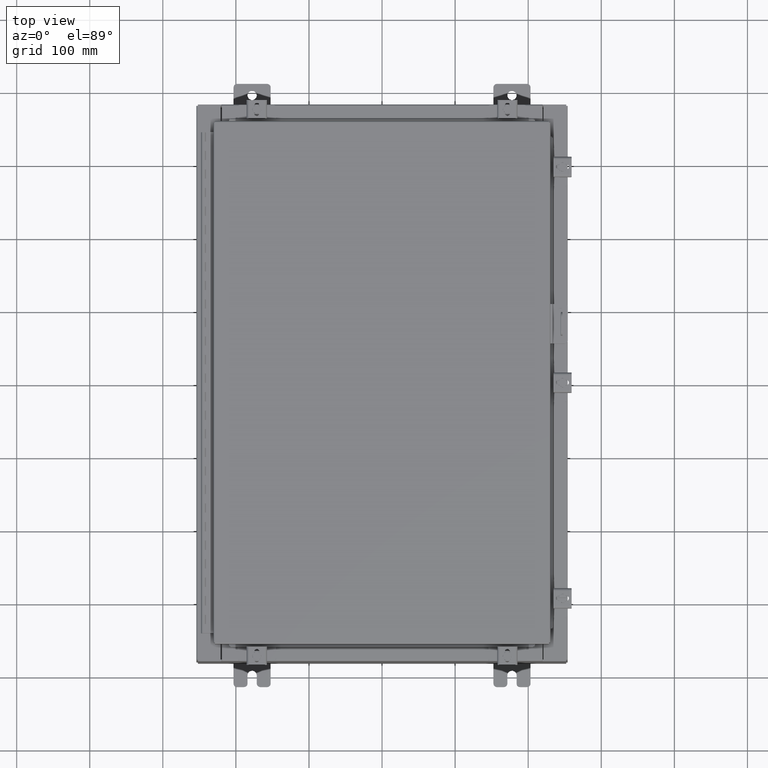
[diagram: clean part render]
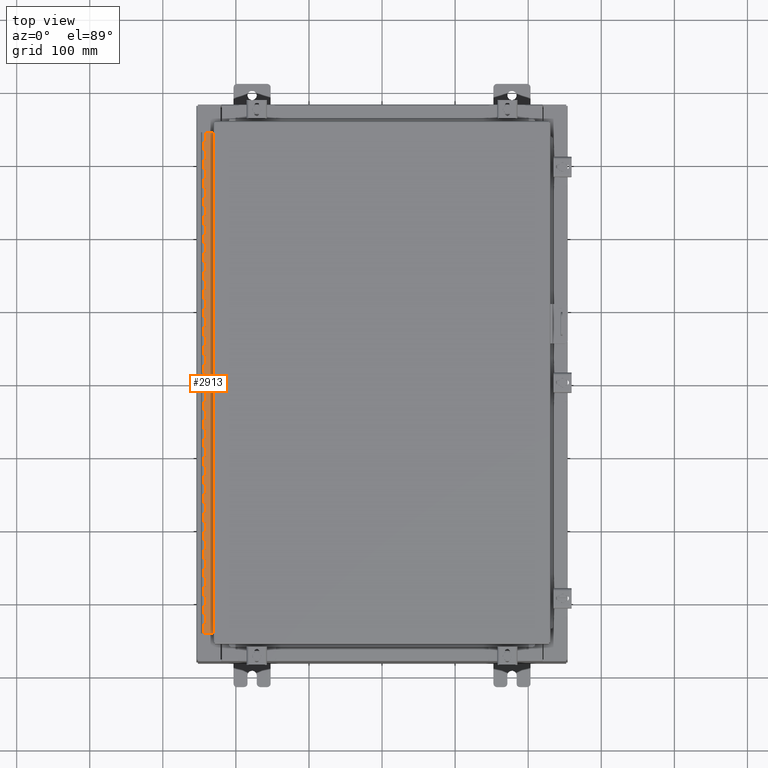
[diagram: same view with one face highlighted and labeled with its STEP entity id]
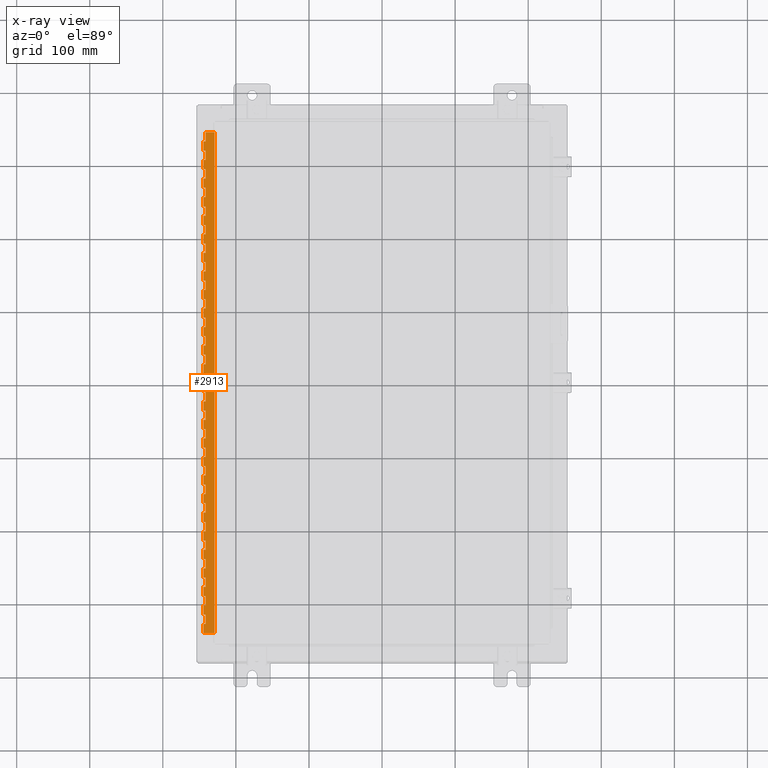
[diagram: x-ray of the same camera — body ghosted, the highlighted face saturated]
A machine part, top view. The second image highlights one B-rep face of the part: STEP entity #2913.
The next image is the same camera in x-ray: the body ghosted, the highlighted face saturated — about 0% of this face is hidden behind the body in this view.
In plain terms, the highlighted planar face has unit normal (-0, -0, 1).
Its self-contained STEP definition (entity closure, byte-faithful):
#37 = EDGE_CURVE ( 'NONE', #25997, #17529, #9720, .T. ) ;
#40 = DIRECTION ( 'NONE',  ( 3.389037039080723100E-015, 1.000000000000000000, -0.0000000000000000000 ) ) ;
#47 = EDGE_CURVE ( 'NONE', #1192, #15212, #2078, .T. ) ;
#98 = VECTOR ( 'NONE', #25423, 39.37007874015748100 ) ;
#179 = CARTESIAN_POINT ( 'NONE',  ( -0.6869999999999978300, 0.6754999999999996600, -16.00000000000000000 ) ) ;
#198 = ORIENTED_EDGE ( 'NONE', *, *, #26823, .F. ) ;
#245 = VECTOR ( 'NONE', #17423, 39.37007874015748100 ) ;
#356 = VECTOR ( 'NONE', #36051, 39.37007874015748100 ) ;
#372 = ORIENTED_EDGE ( 'NONE', *, *, #37, .F. ) ;
#494 = CARTESIAN_POINT ( 'NONE',  ( -0.6869999999999973900, 0.8004999999999995500, -2.000000000000000000 ) ) ;
#689 = ORIENTED_EDGE ( 'NONE', *, *, #17089, .F. ) ;
#716 = DIRECTION ( 'NONE',  ( -3.389037039080723100E-015, -1.000000000000000000, 0.0000000000000000000 ) ) ;
#724 = EDGE_CURVE ( 'NONE', #5952, #29570, #15080, .T. ) ;
#767 = VERTEX_POINT ( 'NONE', #9310 ) ;
#807 = CARTESIAN_POINT ( 'NONE',  ( -0.6869999999999973900, 0.8004999999999995500, -12.49999999999999800 ) ) ;
#821 = ORIENTED_EDGE ( 'NONE', *, *, #11875, .F. ) ;
#865 = CARTESIAN_POINT ( 'NONE',  ( -0.6869999999999982800, 0.5504999999999997700, -22.00000000000000000 ) ) ;
#881 = DIRECTION ( 'NONE',  ( 0.0000000000000000000, 0.0000000000000000000, 1.000000000000000000 ) ) ;
#889 = DIRECTION ( 'NONE',  ( -3.389037039080723100E-015, -1.000000000000000000, 0.0000000000000000000 ) ) ;
#919 = DIRECTION ( 'NONE',  ( -3.389037039080723100E-015, -1.000000000000000000, 0.0000000000000000000 ) ) ;
#938 = CARTESIAN_POINT ( 'NONE',  ( -0.6869999999999982800, 0.5504999999999997700, -5.500000000000000000 ) ) ;
#1005 = VERTEX_POINT ( 'NONE', #2028 ) ;
#1006 = EDGE_CURVE ( 'NONE', #2361, #9297, #15123, .T. ) ;
#1021 = CARTESIAN_POINT ( 'NONE',  ( -0.6869999999999982800, 0.5504999999999997700, -13.50000000000000000 ) ) ;
#1054 = EDGE_CURVE ( 'NONE', #8925, #29570, #21940, .T. ) ;
#1059 = VERTEX_POINT ( 'NONE', #14190 ) ;
#1061 = EDGE_CURVE ( 'NONE', #27502, #34622, #4738, .T. ) ;
#1192 = VERTEX_POINT ( 'NONE', #5784 ) ;
#1197 = DIRECTION ( 'NONE',  ( 0.0000000000000000000, -0.0000000000000000000, -1.000000000000000000 ) ) ;
#1203 = VECTOR ( 'NONE', #17309, 39.37007874015748100 ) ;
#1251 = ORIENTED_EDGE ( 'NONE', *, *, #21301, .F. ) ;
#1291 = VECTOR ( 'NONE', #23014, 39.37007874015748100 ) ;
#1396 = CARTESIAN_POINT ( 'NONE',  ( -0.6869999999999978300, 0.6754999999999996600, -27.00000000000000000 ) ) ;
#1491 = CARTESIAN_POINT ( 'NONE',  ( -0.6869999999999978300, 0.6754999999999996600, -12.99999999999999800 ) ) ;
#1496 = CARTESIAN_POINT ( 'NONE',  ( -0.6869999999999973900, 0.8004999999999995500, -23.00000000000000000 ) ) ;
#1540 = CARTESIAN_POINT ( 'NONE',  ( -0.6869999999999973900, 0.8004999999999995500, -20.50000000000000400 ) ) ;
#1602 = VECTOR ( 'NONE', #10955, 39.37007874015748100 ) ;
#1703 = VERTEX_POINT ( 'NONE', #24580 ) ;
#1765 = EDGE_CURVE ( 'NONE', #13756, #18785, #22323, .T. ) ;
#1771 = LINE ( 'NONE', #11672, #12090 ) ;
#1802 = LINE ( 'NONE', #34826, #2675 ) ;
#1828 = VECTOR ( 'NONE', #22963, 39.37007874015748100 ) ;
#1861 = CARTESIAN_POINT ( 'NONE',  ( -0.6869999999999982800, 0.5504999999999997700, -22.50000000000000000 ) ) ;
#1899 = DIRECTION ( 'NONE',  ( 0.0000000000000000000, 0.0000000000000000000, 1.000000000000000000 ) ) ;
#1949 = ORIENTED_EDGE ( 'NONE', *, *, #2559, .F. ) ;
#2028 = CARTESIAN_POINT ( 'NONE',  ( -0.6869999999999982800, 0.5504999999999997700, -11.99999999999999800 ) ) ;
#2043 = EDGE_CURVE ( 'NONE', #12743, #28753, #6471, .T. ) ;
#2078 = LINE ( 'NONE', #11521, #16499 ) ;
#2132 = ORIENTED_EDGE ( 'NONE', *, *, #5931, .F. ) ;
#2160 = VECTOR ( 'NONE', #14228, 39.37007874015748100 ) ;
#2177 = CARTESIAN_POINT ( 'NONE',  ( -0.6869999999999982800, 0.5504999999999997700, -5.500000000000000000 ) ) ;
#2208 = DIRECTION ( 'NONE',  ( 0.0000000000000000000, -0.0000000000000000000, -1.000000000000000000 ) ) ;
#2211 = CARTESIAN_POINT ( 'NONE',  ( -0.6869999999999973900, 0.8004999999999995500, -18.50000000000000000 ) ) ;
#2296 = CARTESIAN_POINT ( 'NONE',  ( -0.6869999999999973900, 0.8004999999999995500, -2.500000000000000000 ) ) ;
#2317 = CARTESIAN_POINT ( 'NONE',  ( -0.6869999999999973900, 0.8004999999999995500, -1.499999999999999800 ) ) ;
#2361 = VERTEX_POINT ( 'NONE', #36562 ) ;
#2383 = ORIENTED_EDGE ( 'NONE', *, *, #34875, .F. ) ;
#2498 = VERTEX_POINT ( 'NONE', #18252 ) ;
#2536 = DIRECTION ( 'NONE',  ( 3.389037039080723100E-015, 1.000000000000000000, -0.0000000000000000000 ) ) ;
#2559 = EDGE_CURVE ( 'NONE', #26677, #1005, #4636, .T. ) ;
#2575 = ORIENTED_EDGE ( 'NONE', *, *, #37383, .F. ) ;
#2618 = EDGE_CURVE ( 'NONE', #14232, #10335, #2822, .T. ) ;
#2638 = CARTESIAN_POINT ( 'NONE',  ( -0.6869999999999982800, 0.5504999999999997700, -4.500000000000000000 ) ) ;
#2675 = VECTOR ( 'NONE', #35708, 39.37007874015748100 ) ;
#2697 = LINE ( 'NONE', #15128, #9452 ) ;
#2761 = CARTESIAN_POINT ( 'NONE',  ( -0.6869999999999982800, 0.5504999999999997700, -15.50000000000000000 ) ) ;
#2822 = LINE ( 'NONE', #22550, #18170 ) ;
#2838 = EDGE_CURVE ( 'NONE', #20300, #26450, #34033, .T. ) ;
#2908 = LINE ( 'NONE', #10325, #32783 ) ;
#2911 = DIRECTION ( 'NONE',  ( 3.389037039080723100E-015, 1.000000000000000000, -0.0000000000000000000 ) ) ;
#2913 = ADVANCED_FACE ( 'NONE', ( #31297 ), #9305, .T. ) ;
#2954 = CARTESIAN_POINT ( 'NONE',  ( -0.6869999999999982800, 0.5504999999999997700, -7.499999999999999100 ) ) ;
#2961 = VERTEX_POINT ( 'NONE', #3504 ) ;
#3035 = CARTESIAN_POINT ( 'NONE',  ( -0.6869999999999982800, 0.5504999999999997700, -1.000000000000000000 ) ) ;
#3135 = VERTEX_POINT ( 'NONE', #28791 ) ;
#3256 = VERTEX_POINT ( 'NONE', #23178 ) ;
#3274 = CARTESIAN_POINT ( 'NONE',  ( -0.6869999999999978300, 0.6754999999999996600, -14.00000000000000000 ) ) ;
#3423 = VECTOR ( 'NONE', #8438, 39.37007874015748100 ) ;
#3504 = CARTESIAN_POINT ( 'NONE',  ( -0.6869999999999978300, 0.6754999999999996600, -4.000000000000000000 ) ) ;
#3533 = VERTEX_POINT ( 'NONE', #9084 ) ;
#3572 = VECTOR ( 'NONE', #23460, 39.37007874015748100 ) ;
#3587 = ORIENTED_EDGE ( 'NONE', *, *, #12882, .T. ) ;
#3675 = CARTESIAN_POINT ( 'NONE',  ( -0.6869999999999978300, 0.6754999999999996600, -27.00000000000000000 ) ) ;
#3680 = VERTEX_POINT ( 'NONE', #1021 ) ;
#3690 = VECTOR ( 'NONE', #19205, 39.37007874015748100 ) ;
#3721 = CARTESIAN_POINT ( 'NONE',  ( -0.6869999999999978300, 0.6754999999999996600, -8.000000000000000000 ) ) ;
#3726 = EDGE_CURVE ( 'NONE', #28428, #18570, #20354, .T. ) ;
#3745 = DIRECTION ( 'NONE',  ( 0.0000000000000000000, 0.0000000000000000000, 1.000000000000000000 ) ) ;
#3767 = VERTEX_POINT ( 'NONE', #19346 ) ;
#3824 = VERTEX_POINT ( 'NONE', #179 ) ;
#3842 = EDGE_CURVE ( 'NONE', #3135, #10451, #26247, .T. ) ;
#4004 = DIRECTION ( 'NONE',  ( 3.389037039080723100E-015, 1.000000000000000000, -0.0000000000000000000 ) ) ;
#4069 = CARTESIAN_POINT ( 'NONE',  ( -0.6869999999999973900, 0.8004999999999995500, -2.999999999999999600 ) ) ;
#4171 = DIRECTION ( 'NONE',  ( 0.0000000000000000000, -0.0000000000000000000, -1.000000000000000000 ) ) ;
#4272 = LINE ( 'NONE', #23049, #18730 ) ;
#4323 = CARTESIAN_POINT ( 'NONE',  ( -0.6869999999999973900, 0.8004999999999995500, -14.00000000000000000 ) ) ;
#4396 = EDGE_CURVE ( 'NONE', #20144, #21202, #15800, .T. ) ;
#4412 = LINE ( 'NONE', #12312, #19769 ) ;
#4419 = DIRECTION ( 'NONE',  ( 0.0000000000000000000, -0.0000000000000000000, -1.000000000000000000 ) ) ;
#4422 = ORIENTED_EDGE ( 'NONE', *, *, #7153, .F. ) ;
#4467 = CARTESIAN_POINT ( 'NONE',  ( -0.6869999999999982800, 0.5504999999999997700, -5.000000000000000000 ) ) ;
#4483 = CARTESIAN_POINT ( 'NONE',  ( -0.6869999999999982800, 0.5504999999999997700, -16.50000000000000000 ) ) ;
#4544 = VECTOR ( 'NONE', #2911, 39.37007874015748100 ) ;
#4601 = CARTESIAN_POINT ( 'NONE',  ( -0.6869999999999982800, 0.5504999999999997700, -23.50000000000000000 ) ) ;
#4603 = CARTESIAN_POINT ( 'NONE',  ( -0.6869999999999982800, 0.5504999999999997700, -19.00000000000000000 ) ) ;
#4604 = LINE ( 'NONE', #33677, #3690 ) ;
#4612 = EDGE_CURVE ( 'NONE', #18179, #5767, #1802, .T. ) ;
#4631 = EDGE_CURVE ( 'NONE', #33258, #11917, #23923, .T. ) ;
#4636 = LINE ( 'NONE', #36851, #12279 ) ;
#4663 = EDGE_CURVE ( 'NONE', #14568, #6192, #14385, .T. ) ;
#4711 = CARTESIAN_POINT ( 'NONE',  ( -0.6869999999999973900, 0.8004999999999995500, -10.00000000000000000 ) ) ;
#4729 = EDGE_CURVE ( 'NONE', #13669, #19699, #12577, .T. ) ;
#4738 = LINE ( 'NONE', #22828, #34613 ) ;
#4777 = EDGE_CURVE ( 'NONE', #28111, #25399, #33901, .T. ) ;
#5065 = CARTESIAN_POINT ( 'NONE',  ( -0.6869999999999978300, 0.6754999999999996600, -19.50000000000000000 ) ) ;
#5110 = ORIENTED_EDGE ( 'NONE', *, *, #27236, .F. ) ;
#5115 = EDGE_CURVE ( 'NONE', #7412, #25997, #31587, .T. ) ;
#5137 = CARTESIAN_POINT ( 'NONE',  ( -0.6869999999999978300, 0.6754999999999996600, -11.50000000000000000 ) ) ;
#5142 = VERTEX_POINT ( 'NONE', #15434 ) ;
#5191 = CARTESIAN_POINT ( 'NONE',  ( -0.6869999999999973900, 0.8004999999999995500, -11.50000000000000000 ) ) ;
#5297 = VECTOR ( 'NONE', #33623, 39.37007874015748100 ) ;
#5361 = EDGE_LOOP ( 'NONE', ( #24248, #8876, #27623, #17986, #33722, #4422, #15579, #23459, #32546, #372, #5827, #22785, #17726, #7459, #5110, #19401, #32027, #27877, #10694, #17287, #31212, #32050, #6649, #25451, #33157, #24083, #19330, #689, #8901, #2132, #5603, #16523, #21329, #21597, #1251, #31100, #16270, #24467, #13607, #34873, #7808, #821, #31490, #198, #30577, #27654, #32905, #15198, #7530, #17177, #24515, #27692, #3587, #30425, #14746, #31023, #15075, #15599, #11712, #2575, #36941, #30175, #1949, #31721, #28110, #15335, #2383, #29249, #8325, #28715, #29612, #26691, #25922, #36484, #7500, #35768, #9981, #5453, #23974, #30854, #37396, #30984, #35617, #30055, #12207, #35085, #21513, #36554, #10735, #17168, #27169, #5473, #23573, #36919, #8292, #31558, #11355, #19450, #30541, #5640, #21585, #35221, #16705, #12169, #30814, #17283, #21950, #24155, #27305, #10890 ) ) ;
#5453 = ORIENTED_EDGE ( 'NONE', *, *, #4663, .F. ) ;
#5473 = ORIENTED_EDGE ( 'NONE', *, *, #35252, .F. ) ;
#5594 = CARTESIAN_POINT ( 'NONE',  ( -0.6869999999999978300, 0.6754999999999996600, -17.00000000000000000 ) ) ;
#5602 = EDGE_CURVE ( 'NONE', #16896, #31227, #12917, .T. ) ;
#5603 = ORIENTED_EDGE ( 'NONE', *, *, #29003, .F. ) ;
#5640 = ORIENTED_EDGE ( 'NONE', *, *, #16611, .F. ) ;
#5663 = EDGE_CURVE ( 'NONE', #33258, #18860, #33337, .T. ) ;
#5664 = DIRECTION ( 'NONE',  ( 0.0000000000000000000, -0.0000000000000000000, -1.000000000000000000 ) ) ;
#5688 = LINE ( 'NONE', #22327, #19243 ) ;
#5689 = VERTEX_POINT ( 'NONE', #28413 ) ;
#5692 = VECTOR ( 'NONE', #2208, 39.37007874015748100 ) ;
#5767 = VERTEX_POINT ( 'NONE', #24169 ) ;
#5784 = CARTESIAN_POINT ( 'NONE',  ( -0.6869999999999978300, 0.6754999999999996600, -7.499999999999999100 ) ) ;
#5816 = CARTESIAN_POINT ( 'NONE',  ( -0.6869999999999982800, 0.5504999999999997700, -13.50000000000000000 ) ) ;
#5827 = ORIENTED_EDGE ( 'NONE', *, *, #5115, .F. ) ;
#5828 = EDGE_CURVE ( 'NONE', #8834, #32161, #5688, .T. ) ;
#5860 = DIRECTION ( 'NONE',  ( 3.389037039080723100E-015, 1.000000000000000000, -0.0000000000000000000 ) ) ;
#5931 = EDGE_CURVE ( 'NONE', #9769, #37430, #31031, .T. ) ;
#5939 = VECTOR ( 'NONE', #17114, 39.37007874015748100 ) ;
#5952 = VERTEX_POINT ( 'NONE', #9050 ) ;
#5989 = LINE ( 'NONE', #35967, #21389 ) ;
#6152 = EDGE_CURVE ( 'NONE', #29092, #26593, #24688, .T. ) ;
#6153 = CARTESIAN_POINT ( 'NONE',  ( -0.6869999999999978300, 0.6754999999999996600, -27.00000000000000000 ) ) ;
#6192 = VERTEX_POINT ( 'NONE', #3721 ) ;
#6219 = LINE ( 'NONE', #4069, #13865 ) ;
#6263 = CARTESIAN_POINT ( 'NONE',  ( -0.6869999999999982800, 0.5504999999999997700, -22.50000000000000000 ) ) ;
#6314 = EDGE_CURVE ( 'NONE', #3533, #9369, #29648, .T. ) ;
#6418 = VECTOR ( 'NONE', #31907, 39.37007874015748100 ) ;
#6434 = EDGE_CURVE ( 'NONE', #18846, #11556, #23273, .T. ) ;
#6471 = LINE ( 'NONE', #4711, #12314 ) ;
#6514 = VECTOR ( 'NONE', #716, 39.37007874015748100 ) ;
#6575 = CARTESIAN_POINT ( 'NONE',  ( -0.6869999999999982800, 0.5504999999999997700, -12.99999999999999800 ) ) ;
#6576 = DIRECTION ( 'NONE',  ( 0.0000000000000000000, 0.0000000000000000000, 1.000000000000000000 ) ) ;
#6580 = VERTEX_POINT ( 'NONE', #4603 ) ;
#6610 = CARTESIAN_POINT ( 'NONE',  ( -0.6869999999999973900, 0.8004999999999995500, -24.50000000000000000 ) ) ;
#6628 = VECTOR ( 'NONE', #14309, 39.37007874015748100 ) ;
#6649 = ORIENTED_EDGE ( 'NONE', *, *, #12833, .F. ) ;
#6699 = DIRECTION ( 'NONE',  ( 0.0000000000000000000, 0.0000000000000000000, 1.000000000000000000 ) ) ;
#6792 = CARTESIAN_POINT ( 'NONE',  ( -0.6869999999999982800, 0.5504999999999997700, -25.50000000000000400 ) ) ;
#6829 = CARTESIAN_POINT ( 'NONE',  ( -0.6869999999999978300, 0.6754999999999996600, -4.500000000000000000 ) ) ;
#6921 = VERTEX_POINT ( 'NONE', #7123 ) ;
#6993 = CARTESIAN_POINT ( 'NONE',  ( -0.6869999999999982800, 0.5504999999999997700, -1.499999999999999800 ) ) ;
#7027 = CARTESIAN_POINT ( 'NONE',  ( -0.6869999999999973900, 0.8004999999999995500, -22.00000000000000000 ) ) ;
#7075 = VERTEX_POINT ( 'NONE', #35302 ) ;
#7109 = VECTOR ( 'NONE', #10073, 39.37007874015748100 ) ;
#7123 = CARTESIAN_POINT ( 'NONE',  ( -0.6869999999999978300, 0.6754999999999996600, -5.000000000000000000 ) ) ;
#7153 = EDGE_CURVE ( 'NONE', #10335, #18094, #22768, .T. ) ;
#7189 = DIRECTION ( 'NONE',  ( 0.0000000000000000000, 0.0000000000000000000, 1.000000000000000000 ) ) ;
#7212 = DIRECTION ( 'NONE',  ( 3.389037039080723100E-015, 1.000000000000000000, -0.0000000000000000000 ) ) ;
#7226 = DIRECTION ( 'NONE',  ( 0.0000000000000000000, -0.0000000000000000000, -1.000000000000000000 ) ) ;
#7240 = CARTESIAN_POINT ( 'NONE',  ( -0.6869999999999978300, 0.6754999999999996600, -27.00000000000000000 ) ) ;
#7337 = VECTOR ( 'NONE', #24603, 39.37007874015748100 ) ;
#7404 = DIRECTION ( 'NONE',  ( 0.0000000000000000000, 0.0000000000000000000, 1.000000000000000000 ) ) ;
#7412 = VERTEX_POINT ( 'NONE', #21824 ) ;
#7428 = LINE ( 'NONE', #17939, #13285 ) ;
#7459 = ORIENTED_EDGE ( 'NONE', *, *, #6152, .F. ) ;
#7500 = ORIENTED_EDGE ( 'NONE', *, *, #21404, .F. ) ;
#7515 = DIRECTION ( 'NONE',  ( 3.369016658928398200E-015, 1.000000000000000000, 0.0000000000000000000 ) ) ;
#7530 = ORIENTED_EDGE ( 'NONE', *, *, #2838, .T. ) ;
#7710 = VERTEX_POINT ( 'NONE', #10212 ) ;
#7733 = LINE ( 'NONE', #20040, #5939 ) ;
#7808 = ORIENTED_EDGE ( 'NONE', *, *, #4396, .T. ) ;
#8022 = CARTESIAN_POINT ( 'NONE',  ( -0.6869999999999978300, 0.6754999999999996600, -21.00000000000000000 ) ) ;
#8146 = VECTOR ( 'NONE', #13396, 39.37007874015748100 ) ;
#8199 = CARTESIAN_POINT ( 'NONE',  ( -0.6869999999999982800, 0.5504999999999997700, -26.00000000000000000 ) ) ;
#8200 = LINE ( 'NONE', #494, #23617 ) ;
#8264 = EDGE_CURVE ( 'NONE', #2498, #27653, #14067, .T. ) ;
#8292 = ORIENTED_EDGE ( 'NONE', *, *, #21685, .F. ) ;
#8325 = ORIENTED_EDGE ( 'NONE', *, *, #12786, .T. ) ;
#8374 = LINE ( 'NONE', #4601, #30604 ) ;
#8414 = VECTOR ( 'NONE', #6699, 39.37007874015748100 ) ;
#8438 = DIRECTION ( 'NONE',  ( 3.389037039080723100E-015, 1.000000000000000000, -0.0000000000000000000 ) ) ;
#8487 = LINE ( 'NONE', #4323, #22989 ) ;
#8512 = CARTESIAN_POINT ( 'NONE',  ( -0.6869999999999973900, 0.8004999999999995500, -24.99999999999999600 ) ) ;
#8540 = EDGE_CURVE ( 'NONE', #28263, #3824, #34018, .T. ) ;
#8600 = DIRECTION ( 'NONE',  ( 0.0000000000000000000, 0.0000000000000000000, 1.000000000000000000 ) ) ;
#8663 = VERTEX_POINT ( 'NONE', #2954 ) ;
#8695 = CARTESIAN_POINT ( 'NONE',  ( -0.6869999999999982800, 0.5504999999999997700, -18.50000000000000000 ) ) ;
#8816 = EDGE_CURVE ( 'NONE', #25399, #15212, #25837, .T. ) ;
#8834 = VERTEX_POINT ( 'NONE', #18875 ) ;
#8846 = CARTESIAN_POINT ( 'NONE',  ( -0.6869999999999973900, 0.8004999999999995500, -19.50000000000000000 ) ) ;
#8849 = VECTOR ( 'NONE', #32575, 39.37007874015748100 ) ;
#8876 = ORIENTED_EDGE ( 'NONE', *, *, #27519, .T. ) ;
#8901 = ORIENTED_EDGE ( 'NONE', *, *, #26648, .T. ) ;
#8925 = VERTEX_POINT ( 'NONE', #28010 ) ;
#8952 = DIRECTION ( 'NONE',  ( 1.000000000000000000, -3.369016658928398200E-015, 0.0000000000000000000 ) ) ;
#9043 = LINE ( 'NONE', #22506, #31245 ) ;
#9050 = CARTESIAN_POINT ( 'NONE',  ( -0.6869999999999978300, 0.6754999999999996600, -23.50000000000000000 ) ) ;
#9084 = CARTESIAN_POINT ( 'NONE',  ( -0.6869999999999978300, 0.6754999999999996600, -10.50000000000000000 ) ) ;
#9114 = DIRECTION ( 'NONE',  ( 3.389037039080723100E-015, 1.000000000000000000, -0.0000000000000000000 ) ) ;
#9176 = EDGE_CURVE ( 'NONE', #5952, #10278, #14924, .T. ) ;
#9264 = VECTOR ( 'NONE', #11895, 39.37007874015748100 ) ;
#9297 = VERTEX_POINT ( 'NONE', #938 ) ;
#9305 = PLANE ( 'NONE',  #27224 ) ;
#9310 = CARTESIAN_POINT ( 'NONE',  ( -0.6869999999999982800, 0.5504999999999997700, -4.000000000000000000 ) ) ;
#9344 = LINE ( 'NONE', #26949, #8414 ) ;
#9369 = VERTEX_POINT ( 'NONE', #35968 ) ;
#9436 = CARTESIAN_POINT ( 'NONE',  ( -0.6869999999999978300, 0.6754999999999996600, -27.00000000000000000 ) ) ;
#9452 = VECTOR ( 'NONE', #26786, 39.37007874015748100 ) ;
#9458 = LINE ( 'NONE', #2638, #1828 ) ;
#9553 = CARTESIAN_POINT ( 'NONE',  ( -0.6869999999999978300, 0.6754999999999996600, -2.999999999999999600 ) ) ;
#9662 = VECTOR ( 'NONE', #36974, 39.37007874015748100 ) ;
#9720 = LINE ( 'NONE', #8512, #26014 ) ;
#9751 = LINE ( 'NONE', #11469, #1203 ) ;
#9769 = VERTEX_POINT ( 'NONE', #35284 ) ;
#9812 = EDGE_CURVE ( 'NONE', #20300, #18751, #2697, .T. ) ;
#9853 = CARTESIAN_POINT ( 'NONE',  ( -0.6869999999999978300, 0.6754999999999996600, -20.00000000000000000 ) ) ;
#9887 = CARTESIAN_POINT ( 'NONE',  ( -0.6869999999999978300, 0.6754999999999996600, -27.00000000000000000 ) ) ;
#9914 = DIRECTION ( 'NONE',  ( 0.0000000000000000000, -0.0000000000000000000, -1.000000000000000000 ) ) ;
#9957 = VECTOR ( 'NONE', #34559, 39.37007874015748100 ) ;
#9971 = LINE ( 'NONE', #17947, #37147 ) ;
#9981 = ORIENTED_EDGE ( 'NONE', *, *, #20945, .T. ) ;
#9991 = CARTESIAN_POINT ( 'NONE',  ( -0.6869999999999978300, 0.6754999999999996600, -23.00000000000000000 ) ) ;
#10011 = DIRECTION ( 'NONE',  ( 0.0000000000000000000, 0.0000000000000000000, 1.000000000000000000 ) ) ;
#10073 = DIRECTION ( 'NONE',  ( 0.0000000000000000000, 0.0000000000000000000, 1.000000000000000000 ) ) ;
#10088 = CARTESIAN_POINT ( 'NONE',  ( -0.6869999999999978300, 0.6754999999999996600, -15.50000000000000000 ) ) ;
#10125 = LINE ( 'NONE', #31686, #32309 ) ;
#10166 = VERTEX_POINT ( 'NONE', #4467 ) ;
#10186 = CARTESIAN_POINT ( 'NONE',  ( -0.6870000000000022800, -0.6245000000000003900, -27.00000000000000000 ) ) ;
#10208 = VECTOR ( 'NONE', #28856, 39.37007874015748100 ) ;
#10212 = CARTESIAN_POINT ( 'NONE',  ( -0.6869999999999978300, 0.6754999999999996600, -12.49999999999999800 ) ) ;
#10278 = VERTEX_POINT ( 'NONE', #27991 ) ;
#10325 = CARTESIAN_POINT ( 'NONE',  ( -0.6869999999999973900, 0.8004999999999995500, -17.50000000000000000 ) ) ;
#10335 = VERTEX_POINT ( 'NONE', #8199 ) ;
#10429 = CARTESIAN_POINT ( 'NONE',  ( -0.6869999999999978300, 0.6754999999999996600, -27.00000000000000000 ) ) ;
#10436 = CARTESIAN_POINT ( 'NONE',  ( -0.6869999999999982800, 0.5504999999999997700, -6.000000000000000900 ) ) ;
#10438 = CARTESIAN_POINT ( 'NONE',  ( -0.6869999999999978300, 0.6754999999999996600, -2.500000000000000000 ) ) ;
#10451 = VERTEX_POINT ( 'NONE', #8695 ) ;
#10627 = CARTESIAN_POINT ( 'NONE',  ( -0.6869999999999982800, 0.5504999999999997700, -0.5000000000000000000 ) ) ;
#10689 = LINE ( 'NONE', #37444, #2160 ) ;
#10694 = ORIENTED_EDGE ( 'NONE', *, *, #17531, .F. ) ;
#10735 = ORIENTED_EDGE ( 'NONE', *, *, #37379, .T. ) ;
#10742 = LINE ( 'NONE', #17577, #19352 ) ;
#10751 = CARTESIAN_POINT ( 'NONE',  ( -0.6869999999999982800, 0.5504999999999997700, -7.000000000000000000 ) ) ;
#10789 = CARTESIAN_POINT ( 'NONE',  ( -0.6869999999999973900, 0.8004999999999995500, -20.00000000000000000 ) ) ;
#10890 = ORIENTED_EDGE ( 'NONE', *, *, #31208, .F. ) ;
#10955 = DIRECTION ( 'NONE',  ( -3.389037039080723100E-015, -1.000000000000000000, 0.0000000000000000000 ) ) ;
#11033 = DIRECTION ( 'NONE',  ( 3.389037039080723100E-015, 1.000000000000000000, -0.0000000000000000000 ) ) ;
#11074 = LINE ( 'NONE', #25797, #3423 ) ;
#11143 = EDGE_CURVE ( 'NONE', #13669, #30408, #24843, .T. ) ;
#11149 = VECTOR ( 'NONE', #881, 39.37007874015748100 ) ;
#11185 = VECTOR ( 'NONE', #5664, 39.37007874015748100 ) ;
#11355 = ORIENTED_EDGE ( 'NONE', *, *, #27461, .T. ) ;
#11469 = CARTESIAN_POINT ( 'NONE',  ( -0.6869999999999978300, 0.6754999999999996600, -27.00000000000000000 ) ) ;
#11500 = DIRECTION ( 'NONE',  ( 0.0000000000000000000, -0.0000000000000000000, -1.000000000000000000 ) ) ;
#11521 = CARTESIAN_POINT ( 'NONE',  ( -0.6869999999999978300, 0.6754999999999996600, -27.00000000000000000 ) ) ;
#11533 = LINE ( 'NONE', #37040, #33798 ) ;
#11556 = VERTEX_POINT ( 'NONE', #1491 ) ;
#11565 = DIRECTION ( 'NONE',  ( 3.389037039080723100E-015, 1.000000000000000000, -0.0000000000000000000 ) ) ;
#11609 = VECTOR ( 'NONE', #889, 39.37007874015748100 ) ;
#11611 = CARTESIAN_POINT ( 'NONE',  ( -0.6869999999999978300, 0.6754999999999996600, -27.00000000000000000 ) ) ;
#11641 = CARTESIAN_POINT ( 'NONE',  ( -0.6869999999999973900, 0.8004999999999995500, -23.99999999999999600 ) ) ;
#11672 = CARTESIAN_POINT ( 'NONE',  ( -0.6869999999999978300, 0.6754999999999996600, -27.00000000000000000 ) ) ;
#11712 = ORIENTED_EDGE ( 'NONE', *, *, #8264, .F. ) ;
#11733 = DIRECTION ( 'NONE',  ( -3.389037039080723100E-015, -1.000000000000000000, 0.0000000000000000000 ) ) ;
#11875 = EDGE_CURVE ( 'NONE', #19956, #21202, #17493, .T. ) ;
#11895 = DIRECTION ( 'NONE',  ( 3.389037039080723100E-015, 1.000000000000000000, -0.0000000000000000000 ) ) ;
#11917 = VERTEX_POINT ( 'NONE', #17548 ) ;
#11950 = VERTEX_POINT ( 'NONE', #11978 ) ;
#11978 = CARTESIAN_POINT ( 'NONE',  ( -0.6869999999999978300, 0.6754999999999996600, -24.50000000000000000 ) ) ;
#12090 = VECTOR ( 'NONE', #31954, 39.37007874015748100 ) ;
#12169 = ORIENTED_EDGE ( 'NONE', *, *, #1765, .F. ) ;
#12182 = LINE ( 'NONE', #21267, #34414 ) ;
#12194 = DIRECTION ( 'NONE',  ( 0.0000000000000000000, 0.0000000000000000000, 1.000000000000000000 ) ) ;
#12207 = ORIENTED_EDGE ( 'NONE', *, *, #12891, .T. ) ;
#12218 = LINE ( 'NONE', #6993, #34458 ) ;
#12246 = DIRECTION ( 'NONE',  ( 0.0000000000000000000, 0.0000000000000000000, 1.000000000000000000 ) ) ;
#12279 = VECTOR ( 'NONE', #7226, 39.37007874015748100 ) ;
#12281 = CARTESIAN_POINT ( 'NONE',  ( -0.6869999999999978300, 0.6754999999999996600, -27.00000000000000000 ) ) ;
#12312 = CARTESIAN_POINT ( 'NONE',  ( -0.6869999999999978300, 0.6754999999999996600, -27.00000000000000000 ) ) ;
#12314 = VECTOR ( 'NONE', #9114, 39.37007874015748100 ) ;
#12386 = LINE ( 'NONE', #35572, #36444 ) ;
#12412 = VECTOR ( 'NONE', #28248, 39.37007874015748100 ) ;
#12443 = EDGE_CURVE ( 'NONE', #18751, #24753, #34335, .T. ) ;
#12507 = EDGE_CURVE ( 'NONE', #20380, #24978, #1771, .T. ) ;
#12518 = DIRECTION ( 'NONE',  ( 0.0000000000000000000, 0.0000000000000000000, 1.000000000000000000 ) ) ;
#12563 = CARTESIAN_POINT ( 'NONE',  ( -0.6869999999999973900, 0.8004999999999995500, -11.00000000000000000 ) ) ;
#12577 = LINE ( 'NONE', #33625, #26172 ) ;
#12585 = CARTESIAN_POINT ( 'NONE',  ( -0.6869999999999978300, 0.6754999999999996600, -16.50000000000000000 ) ) ;
#12607 = VERTEX_POINT ( 'NONE', #20819 ) ;
#12643 = VECTOR ( 'NONE', #28489, 39.37007874015748100 ) ;
#12654 = EDGE_CURVE ( 'NONE', #18846, #3680, #34754, .T. ) ;
#12662 = VERTEX_POINT ( 'NONE', #9553 ) ;
#12695 = CARTESIAN_POINT ( 'NONE',  ( -0.6869999999999982800, 0.5504999999999997700, -10.00000000000000000 ) ) ;
#12743 = VERTEX_POINT ( 'NONE', #12695 ) ;
#12786 = EDGE_CURVE ( 'NONE', #3533, #28753, #14789, .T. ) ;
#12833 = EDGE_CURVE ( 'NONE', #29901, #22565, #21616, .T. ) ;
#12882 = EDGE_CURVE ( 'NONE', #18179, #15564, #4412, .T. ) ;
#12891 = EDGE_CURVE ( 'NONE', #12607, #18570, #22504, .T. ) ;
#12917 = LINE ( 'NONE', #36422, #19708 ) ;
#12934 = EDGE_CURVE ( 'NONE', #25344, #33170, #17945, .T. ) ;
#12960 = CARTESIAN_POINT ( 'NONE',  ( -0.6869999999999978300, 0.6754999999999996600, -6.000000000000000900 ) ) ;
#13020 = CARTESIAN_POINT ( 'NONE',  ( -0.6869999999999982800, 0.5504999999999997700, -19.50000000000000000 ) ) ;
#13054 = CARTESIAN_POINT ( 'NONE',  ( -0.6869999999999982800, 0.5504999999999997700, -2.500000000000000000 ) ) ;
#13175 = LINE ( 'NONE', #807, #35401 ) ;
#13285 = VECTOR ( 'NONE', #12246, 39.37007874015748100 ) ;
#13319 = DIRECTION ( 'NONE',  ( -3.389037039080723100E-015, -1.000000000000000000, 0.0000000000000000000 ) ) ;
#13339 = LINE ( 'NONE', #10627, #5692 ) ;
#13396 = DIRECTION ( 'NONE',  ( 0.0000000000000000000, -0.0000000000000000000, -1.000000000000000000 ) ) ;
#13516 = CARTESIAN_POINT ( 'NONE',  ( -0.6869999999999978300, 0.6754999999999996600, -3.500000000000000000 ) ) ;
#13607 = ORIENTED_EDGE ( 'NONE', *, *, #5828, .F. ) ;
#13669 = VERTEX_POINT ( 'NONE', #30395 ) ;
#13721 = VECTOR ( 'NONE', #11500, 39.37007874015748100 ) ;
#13756 = VERTEX_POINT ( 'NONE', #16211 ) ;
#13776 = VECTOR ( 'NONE', #26311, 39.37007874015748100 ) ;
#13834 = CARTESIAN_POINT ( 'NONE',  ( -0.6870000000000022800, -0.6245000000000003900, 0.0000000000000000000 ) ) ;
#13841 = LINE ( 'NONE', #16260, #27497 ) ;
#13861 = DIRECTION ( 'NONE',  ( 3.389037039080723100E-015, 1.000000000000000000, -0.0000000000000000000 ) ) ;
#13865 = VECTOR ( 'NONE', #32903, 39.37007874015748100 ) ;
#13934 = EDGE_CURVE ( 'NONE', #27653, #11556, #11074, .T. ) ;
#14020 = EDGE_CURVE ( 'NONE', #3680, #37496, #31481, .T. ) ;
#14067 = LINE ( 'NONE', #32115, #6418 ) ;
#14069 = VECTOR ( 'NONE', #35385, 39.37007874015748100 ) ;
#14106 = CARTESIAN_POINT ( 'NONE',  ( -0.6869999999999982800, 0.5504999999999997700, -3.500000000000000000 ) ) ;
#14190 = CARTESIAN_POINT ( 'NONE',  ( -0.6869999999999978300, 0.6754999999999996600, 0.0000000000000000000 ) ) ;
#14197 = EDGE_CURVE ( 'NONE', #1192, #8663, #33763, .T. ) ;
#14228 = DIRECTION ( 'NONE',  ( -3.389037039080723100E-015, -1.000000000000000000, 0.0000000000000000000 ) ) ;
#14232 = VERTEX_POINT ( 'NONE', #6792 ) ;
#14297 = CARTESIAN_POINT ( 'NONE',  ( -0.6869999999999982800, 0.5504999999999997700, -0.5000000000000000000 ) ) ;
#14309 = DIRECTION ( 'NONE',  ( -3.389037039080723100E-015, -1.000000000000000000, 0.0000000000000000000 ) ) ;
#14385 = LINE ( 'NONE', #37194, #29818 ) ;
#14493 = DIRECTION ( 'NONE',  ( 0.0000000000000000000, -0.0000000000000000000, -1.000000000000000000 ) ) ;
#14528 = VERTEX_POINT ( 'NONE', #30308 ) ;
#14568 = VERTEX_POINT ( 'NONE', #24741 ) ;
#14659 = DIRECTION ( 'NONE',  ( -3.389037039080723100E-015, -1.000000000000000000, 0.0000000000000000000 ) ) ;
#14667 = VECTOR ( 'NONE', #14493, 39.37007874015748100 ) ;
#14697 = LINE ( 'NONE', #23385, #13776 ) ;
#14701 = CARTESIAN_POINT ( 'NONE',  ( -0.6869999999999973900, 0.8004999999999995500, -5.500000000000000000 ) ) ;
#14702 = EDGE_CURVE ( 'NONE', #3256, #30408, #34621, .T. ) ;
#14746 = ORIENTED_EDGE ( 'NONE', *, *, #14020, .F. ) ;
#14769 = CARTESIAN_POINT ( 'NONE',  ( -0.6869999999999973900, 0.8004999999999995500, -6.000000000000000900 ) ) ;
#14789 = LINE ( 'NONE', #1396, #7109 ) ;
#14819 = EDGE_CURVE ( 'NONE', #37167, #16896, #35993, .T. ) ;
#14832 = EDGE_CURVE ( 'NONE', #767, #2961, #4272, .T. ) ;
#14890 = LINE ( 'NONE', #13834, #27614 ) ;
#14924 = LINE ( 'NONE', #34956, #37151 ) ;
#15011 = EDGE_CURVE ( 'NONE', #14528, #24853, #22791, .T. ) ;
#15026 = LINE ( 'NONE', #13054, #7337 ) ;
#15075 = ORIENTED_EDGE ( 'NONE', *, *, #6434, .T. ) ;
#15080 = LINE ( 'NONE', #9436, #30510 ) ;
#15123 = LINE ( 'NONE', #14701, #37350 ) ;
#15128 = CARTESIAN_POINT ( 'NONE',  ( -0.6869999999999973900, 0.8004999999999995500, -15.50000000000000000 ) ) ;
#15140 = CARTESIAN_POINT ( 'NONE',  ( -0.6869999999999982800, 0.5504999999999997700, -21.00000000000000000 ) ) ;
#15175 = VERTEX_POINT ( 'NONE', #13020 ) ;
#15195 = CARTESIAN_POINT ( 'NONE',  ( -0.6869999999999973900, 0.8004999999999995500, -26.50000000000000400 ) ) ;
#15198 = ORIENTED_EDGE ( 'NONE', *, *, #9812, .F. ) ;
#15212 = VERTEX_POINT ( 'NONE', #36361 ) ;
#15335 = ORIENTED_EDGE ( 'NONE', *, *, #12934, .F. ) ;
#15434 = CARTESIAN_POINT ( 'NONE',  ( -0.6869999999999978300, 0.6754999999999996600, -0.5000000000000000000 ) ) ;
#15445 = VECTOR ( 'NONE', #7189, 39.37007874015748100 ) ;
#15460 = EDGE_CURVE ( 'NONE', #32161, #18306, #21876, .T. ) ;
#15477 = VERTEX_POINT ( 'NONE', #31868 ) ;
#15564 = VERTEX_POINT ( 'NONE', #3274 ) ;
#15576 = CARTESIAN_POINT ( 'NONE',  ( -0.6869999999999978300, 0.6754999999999996600, -9.000000000000000000 ) ) ;
#15579 = ORIENTED_EDGE ( 'NONE', *, *, #2618, .F. ) ;
#15588 = VECTOR ( 'NONE', #24557, 39.37007874015748100 ) ;
#15599 = ORIENTED_EDGE ( 'NONE', *, *, #13934, .F. ) ;
#15601 = LINE ( 'NONE', #34775, #14667 ) ;
#15608 = DIRECTION ( 'NONE',  ( 0.0000000000000000000, -0.0000000000000000000, -1.000000000000000000 ) ) ;
#15758 = VECTOR ( 'NONE', #26856, 39.37007874015748100 ) ;
#15800 = LINE ( 'NONE', #25599, #30298 ) ;
#15850 = VECTOR ( 'NONE', #23280, 39.37007874015748100 ) ;
#15890 = LINE ( 'NONE', #1861, #8146 ) ;
#15899 = EDGE_CURVE ( 'NONE', #36196, #28595, #15026, .T. ) ;
#15910 = EDGE_CURVE ( 'NONE', #5142, #31908, #15952, .T. ) ;
#15952 = LINE ( 'NONE', #18885, #29527 ) ;
#15985 = CARTESIAN_POINT ( 'NONE',  ( -0.6869999999999982800, 0.5504999999999997700, -19.50000000000000000 ) ) ;
#16004 = CARTESIAN_POINT ( 'NONE',  ( -0.6869999999999982800, 0.5504999999999997700, -21.50000000000000400 ) ) ;
#16076 = CARTESIAN_POINT ( 'NONE',  ( -0.6869999999999982800, 0.5504999999999997700, -9.500000000000000000 ) ) ;
#16089 = VECTOR ( 'NONE', #15608, 39.37007874015748100 ) ;
#16187 = DIRECTION ( 'NONE',  ( 0.0000000000000000000, -0.0000000000000000000, -1.000000000000000000 ) ) ;
#16211 = CARTESIAN_POINT ( 'NONE',  ( -0.6869999999999978300, 0.6754999999999996600, -1.499999999999999800 ) ) ;
#16260 = CARTESIAN_POINT ( 'NONE',  ( -0.6869999999999978300, 0.6754999999999996600, -27.00000000000000000 ) ) ;
#16270 = ORIENTED_EDGE ( 'NONE', *, *, #24115, .T. ) ;
#16424 = LINE ( 'NONE', #15985, #30927 ) ;
#16499 = VECTOR ( 'NONE', #8600, 39.37007874015748100 ) ;
#16512 = EDGE_CURVE ( 'NONE', #12607, #28111, #4604, .T. ) ;
#16523 = ORIENTED_EDGE ( 'NONE', *, *, #19381, .F. ) ;
#16560 = LINE ( 'NONE', #12281, #8849 ) ;
#16611 = EDGE_CURVE ( 'NONE', #20380, #36196, #23116, .T. ) ;
#16674 = VERTEX_POINT ( 'NONE', #19824 ) ;
#16689 = VECTOR ( 'NONE', #22614, 39.37007874015748100 ) ;
#16705 = ORIENTED_EDGE ( 'NONE', *, *, #20890, .F. ) ;
#16753 = DIRECTION ( 'NONE',  ( 0.0000000000000000000, 0.0000000000000000000, 1.000000000000000000 ) ) ;
#16764 = DIRECTION ( 'NONE',  ( 3.369016658928398200E-015, 1.000000000000000000, 0.0000000000000000000 ) ) ;
#16780 = CARTESIAN_POINT ( 'NONE',  ( -0.6869999999999978300, 0.6754999999999996600, -14.49999999999999800 ) ) ;
#16854 = CARTESIAN_POINT ( 'NONE',  ( -0.6869999999999982800, 0.5504999999999997700, -1.499999999999999800 ) ) ;
#16855 = DIRECTION ( 'NONE',  ( 3.389037039080723100E-015, 1.000000000000000000, -0.0000000000000000000 ) ) ;
#16896 = VERTEX_POINT ( 'NONE', #15140 ) ;
#16978 = VECTOR ( 'NONE', #28585, 39.37007874015748100 ) ;
#17032 = VECTOR ( 'NONE', #4004, 39.37007874015748100 ) ;
#17089 = EDGE_CURVE ( 'NONE', #26813, #37167, #24007, .T. ) ;
#17114 = DIRECTION ( 'NONE',  ( 0.0000000000000000000, 0.0000000000000000000, 1.000000000000000000 ) ) ;
#17156 = CARTESIAN_POINT ( 'NONE',  ( -0.6869999999999982800, 0.5504999999999997700, -17.00000000000000000 ) ) ;
#17168 = ORIENTED_EDGE ( 'NONE', *, *, #22271, .F. ) ;
#17177 = ORIENTED_EDGE ( 'NONE', *, *, #30639, .F. ) ;
#17182 = CARTESIAN_POINT ( 'NONE',  ( -0.6869999999999982800, 0.5504999999999997700, -20.50000000000000400 ) ) ;
#17283 = ORIENTED_EDGE ( 'NONE', *, *, #1061, .F. ) ;
#17287 = ORIENTED_EDGE ( 'NONE', *, *, #5663, .F. ) ;
#17290 = CARTESIAN_POINT ( 'NONE',  ( -0.6869999999999973900, 0.8004999999999995500, -11.99999999999999800 ) ) ;
#17309 = DIRECTION ( 'NONE',  ( 0.0000000000000000000, 0.0000000000000000000, 1.000000000000000000 ) ) ;
#17365 = VECTOR ( 'NONE', #28276, 39.37007874015748100 ) ;
#17423 = DIRECTION ( 'NONE',  ( 0.0000000000000000000, 0.0000000000000000000, 1.000000000000000000 ) ) ;
#17493 = LINE ( 'NONE', #28987, #1291 ) ;
#17529 = VERTEX_POINT ( 'NONE', #27772 ) ;
#17531 = EDGE_CURVE ( 'NONE', #18860, #8925, #15890, .T. ) ;
#17548 = CARTESIAN_POINT ( 'NONE',  ( -0.6869999999999978300, 0.6754999999999996600, -22.00000000000000000 ) ) ;
#17558 = CARTESIAN_POINT ( 'NONE',  ( -0.6869999999999982800, 0.5504999999999997700, -24.50000000000000000 ) ) ;
#17577 = CARTESIAN_POINT ( 'NONE',  ( -0.6869999999999973900, 0.8004999999999995500, -16.00000000000000000 ) ) ;
#17583 = LINE ( 'NONE', #14106, #16689 ) ;
#17602 = VERTEX_POINT ( 'NONE', #13516 ) ;
#17646 = VERTEX_POINT ( 'NONE', #25464 ) ;
#17726 = ORIENTED_EDGE ( 'NONE', *, *, #25767, .T. ) ;
#17877 = DIRECTION ( 'NONE',  ( 0.0000000000000000000, -0.0000000000000000000, -1.000000000000000000 ) ) ;
#17939 = CARTESIAN_POINT ( 'NONE',  ( -0.6869999999999978300, 0.6754999999999996600, -27.00000000000000000 ) ) ;
#17945 = LINE ( 'NONE', #12563, #17032 ) ;
#17947 = CARTESIAN_POINT ( 'NONE',  ( -0.6869999999999982800, 0.5504999999999997700, -18.50000000000000000 ) ) ;
#17986 = ORIENTED_EDGE ( 'NONE', *, *, #15011, .F. ) ;
#18094 = VERTEX_POINT ( 'NONE', #22247 ) ;
#18111 = LINE ( 'NONE', #7240, #25831 ) ;
#18170 = VECTOR ( 'NONE', #4171, 39.37007874015748100 ) ;
#18179 = VERTEX_POINT ( 'NONE', #16780 ) ;
#18215 = EDGE_CURVE ( 'NONE', #6580, #7075, #24895, .T. ) ;
#18252 = CARTESIAN_POINT ( 'NONE',  ( -0.6869999999999982800, 0.5504999999999997700, -12.49999999999999800 ) ) ;
#18266 = CARTESIAN_POINT ( 'NONE',  ( -0.6869999999999982800, 0.5504999999999997700, -2.500000000000000000 ) ) ;
#18306 = VERTEX_POINT ( 'NONE', #31845 ) ;
#18570 = VERTEX_POINT ( 'NONE', #12960 ) ;
#18613 = VECTOR ( 'NONE', #23380, 39.37007874015748100 ) ;
#18730 = VECTOR ( 'NONE', #5860, 39.37007874015748100 ) ;
#18751 = VERTEX_POINT ( 'NONE', #34115 ) ;
#18785 = VERTEX_POINT ( 'NONE', #16854 ) ;
#18846 = VERTEX_POINT ( 'NONE', #22816 ) ;
#18860 = VERTEX_POINT ( 'NONE', #6263 ) ;
#18872 = DIRECTION ( 'NONE',  ( 0.0000000000000000000, -0.0000000000000000000, -1.000000000000000000 ) ) ;
#18875 = CARTESIAN_POINT ( 'NONE',  ( -0.6869999999999982800, 0.5504999999999997700, -17.50000000000000000 ) ) ;
#18885 = CARTESIAN_POINT ( 'NONE',  ( -0.6869999999999973900, 0.8004999999999995500, -0.5000000000000000000 ) ) ;
#19031 = VECTOR ( 'NONE', #30161, 39.37007874015748100 ) ;
#19036 = VECTOR ( 'NONE', #27643, 39.37007874015748100 ) ;
#19121 = CARTESIAN_POINT ( 'NONE',  ( -0.6869999999999978300, 0.6754999999999996600, -27.00000000000000000 ) ) ;
#19205 = DIRECTION ( 'NONE',  ( -3.389037039080723100E-015, -1.000000000000000000, 0.0000000000000000000 ) ) ;
#19243 = VECTOR ( 'NONE', #22939, 39.37007874015748100 ) ;
#19330 = ORIENTED_EDGE ( 'NONE', *, *, #14819, .F. ) ;
#19346 = CARTESIAN_POINT ( 'NONE',  ( -0.6869999999999982800, 0.5504999999999997700, -14.99999999999999800 ) ) ;
#19352 = VECTOR ( 'NONE', #34975, 39.37007874015748100 ) ;
#19369 = VECTOR ( 'NONE', #32859, 39.37007874015748100 ) ;
#19381 = EDGE_CURVE ( 'NONE', #23359, #15175, #21886, .T. ) ;
#19386 = LINE ( 'NONE', #24760, #26185 ) ;
#19401 = ORIENTED_EDGE ( 'NONE', *, *, #9176, .F. ) ;
#19450 = ORIENTED_EDGE ( 'NONE', *, *, #33000, .F. ) ;
#19699 = VERTEX_POINT ( 'NONE', #16076 ) ;
#19708 = VECTOR ( 'NONE', #31556, 39.37007874015748100 ) ;
#19769 = VECTOR ( 'NONE', #3745, 39.37007874015748100 ) ;
#19824 = CARTESIAN_POINT ( 'NONE',  ( -0.6869999999999978300, 0.6754999999999996600, -25.50000000000000400 ) ) ;
#19956 = VERTEX_POINT ( 'NONE', #17156 ) ;
#20040 = CARTESIAN_POINT ( 'NONE',  ( -0.6869999999999978300, 0.6754999999999996600, -27.00000000000000000 ) ) ;
#20144 = VERTEX_POINT ( 'NONE', #20974 ) ;
#20300 = VERTEX_POINT ( 'NONE', #10088 ) ;
#20354 = LINE ( 'NONE', #14769, #12643 ) ;
#20380 = VERTEX_POINT ( 'NONE', #10438 ) ;
#20606 = EDGE_CURVE ( 'NONE', #16674, #17529, #7733, .T. ) ;
#20680 = DIRECTION ( 'NONE',  ( 3.389037039080723100E-015, 1.000000000000000000, -0.0000000000000000000 ) ) ;
#20716 = LINE ( 'NONE', #21285, #27548 ) ;
#20819 = CARTESIAN_POINT ( 'NONE',  ( -0.6869999999999978300, 0.6754999999999996600, -6.499999999999999100 ) ) ;
#20883 = DIRECTION ( 'NONE',  ( 0.0000000000000000000, -0.0000000000000000000, -1.000000000000000000 ) ) ;
#20890 = EDGE_CURVE ( 'NONE', #18785, #24887, #12218, .T. ) ;
#20895 = EDGE_CURVE ( 'NONE', #17646, #24570, #35363, .T. ) ;
#20945 = EDGE_CURVE ( 'NONE', #17646, #6192, #18111, .T. ) ;
#20974 = CARTESIAN_POINT ( 'NONE',  ( -0.6869999999999978300, 0.6754999999999996600, -17.50000000000000000 ) ) ;
#21202 = VERTEX_POINT ( 'NONE', #5594 ) ;
#21247 = EDGE_CURVE ( 'NONE', #13756, #34622, #23526, .T. ) ;
#21267 = CARTESIAN_POINT ( 'NONE',  ( -0.6869999999999982800, 0.5504999999999997700, -8.500000000000000000 ) ) ;
#21285 = CARTESIAN_POINT ( 'NONE',  ( -0.6869999999999978300, 0.6754999999999996600, -27.00000000000000000 ) ) ;
#21301 = EDGE_CURVE ( 'NONE', #10451, #6580, #9971, .T. ) ;
#21329 = ORIENTED_EDGE ( 'NONE', *, *, #22108, .T. ) ;
#21389 = VECTOR ( 'NONE', #24286, 39.37007874015748100 ) ;
#21404 = EDGE_CURVE ( 'NONE', #24570, #3256, #12182, .T. ) ;
#21441 = CARTESIAN_POINT ( 'NONE',  ( -0.6869999999999973900, 0.8004999999999995500, -8.500000000000000000 ) ) ;
#21513 = ORIENTED_EDGE ( 'NONE', *, *, #33230, .F. ) ;
#21585 = ORIENTED_EDGE ( 'NONE', *, *, #12507, .T. ) ;
#21597 = ORIENTED_EDGE ( 'NONE', *, *, #18215, .F. ) ;
#21616 = LINE ( 'NONE', #32342, #36129 ) ;
#21649 = CARTESIAN_POINT ( 'NONE',  ( -0.6869999999999982800, 0.5504999999999997700, -10.50000000000000000 ) ) ;
#21685 = EDGE_CURVE ( 'NONE', #24836, #767, #17583, .T. ) ;
#21824 = CARTESIAN_POINT ( 'NONE',  ( -0.6869999999999982800, 0.5504999999999997700, -24.50000000000000000 ) ) ;
#21859 = EDGE_CURVE ( 'NONE', #15477, #29901, #35298, .T. ) ;
#21876 = LINE ( 'NONE', #23122, #29564 ) ;
#21886 = LINE ( 'NONE', #8846, #28678 ) ;
#21940 = LINE ( 'NONE', #1496, #35521 ) ;
#21950 = ORIENTED_EDGE ( 'NONE', *, *, #27298, .F. ) ;
#22034 = LINE ( 'NONE', #28403, #6628 ) ;
#22088 = VECTOR ( 'NONE', #16187, 39.37007874015748100 ) ;
#22108 = EDGE_CURVE ( 'NONE', #23359, #7075, #19386, .T. ) ;
#22134 = CARTESIAN_POINT ( 'NONE',  ( -0.6869999999999978300, 0.6754999999999996600, -11.00000000000000000 ) ) ;
#22171 = CARTESIAN_POINT ( 'NONE',  ( -0.6869999999999982800, 0.5504999999999997700, -11.00000000000000000 ) ) ;
#22247 = CARTESIAN_POINT ( 'NONE',  ( -0.6869999999999978300, 0.6754999999999996600, -26.00000000000000000 ) ) ;
#22271 = EDGE_CURVE ( 'NONE', #10166, #6921, #31174, .T. ) ;
#22323 = LINE ( 'NONE', #2317, #23213 ) ;
#22327 = CARTESIAN_POINT ( 'NONE',  ( -0.6869999999999982800, 0.5504999999999997700, -17.50000000000000000 ) ) ;
#22368 = DIRECTION ( 'NONE',  ( 0.0000000000000000000, -0.0000000000000000000, -1.000000000000000000 ) ) ;
#22434 = CARTESIAN_POINT ( 'NONE',  ( -0.6869999999999973900, 0.8004999999999995500, -9.000000000000000000 ) ) ;
#22504 = LINE ( 'NONE', #32606, #11149 ) ;
#22506 = CARTESIAN_POINT ( 'NONE',  ( -0.6869999999999973900, 0.8004999999999995500, -14.99999999999999800 ) ) ;
#22550 = CARTESIAN_POINT ( 'NONE',  ( -0.6869999999999982800, 0.5504999999999997700, -25.50000000000000400 ) ) ;
#22565 = VERTEX_POINT ( 'NONE', #865 ) ;
#22614 = DIRECTION ( 'NONE',  ( 0.0000000000000000000, -0.0000000000000000000, -1.000000000000000000 ) ) ;
#22690 = CARTESIAN_POINT ( 'NONE',  ( -0.6869999999999978300, 0.6754999999999996600, -2.000000000000000000 ) ) ;
#22768 = LINE ( 'NONE', #31205, #37298 ) ;
#22785 = ORIENTED_EDGE ( 'NONE', *, *, #32090, .F. ) ;
#22791 = LINE ( 'NONE', #15195, #6514 ) ;
#22816 = CARTESIAN_POINT ( 'NONE',  ( -0.6869999999999978300, 0.6754999999999996600, -13.50000000000000000 ) ) ;
#22828 = CARTESIAN_POINT ( 'NONE',  ( -0.6869999999999973900, 0.8004999999999995500, -1.000000000000000000 ) ) ;
#22939 = DIRECTION ( 'NONE',  ( 0.0000000000000000000, -0.0000000000000000000, -1.000000000000000000 ) ) ;
#22963 = DIRECTION ( 'NONE',  ( 0.0000000000000000000, -0.0000000000000000000, -1.000000000000000000 ) ) ;
#22989 = VECTOR ( 'NONE', #7212, 39.37007874015748100 ) ;
#23014 = DIRECTION ( 'NONE',  ( 3.389037039080723100E-015, 1.000000000000000000, -0.0000000000000000000 ) ) ;
#23049 = CARTESIAN_POINT ( 'NONE',  ( -0.6869999999999973900, 0.8004999999999995500, -4.000000000000000000 ) ) ;
#23077 = VECTOR ( 'NONE', #27567, 39.37007874015748100 ) ;
#23116 = LINE ( 'NONE', #2296, #98 ) ;
#23122 = CARTESIAN_POINT ( 'NONE',  ( -0.6869999999999973900, 0.8004999999999995500, -17.99999999999999600 ) ) ;
#23125 = LINE ( 'NONE', #35963, #15445 ) ;
#23128 = VERTEX_POINT ( 'NONE', #6829 ) ;
#23178 = CARTESIAN_POINT ( 'NONE',  ( -0.6869999999999982800, 0.5504999999999997700, -9.000000000000000000 ) ) ;
#23194 = EDGE_CURVE ( 'NONE', #37496, #15564, #8487, .T. ) ;
#23213 = VECTOR ( 'NONE', #37467, 39.37007874015748100 ) ;
#23273 = LINE ( 'NONE', #19121, #245 ) ;
#23280 = DIRECTION ( 'NONE',  ( 0.0000000000000000000, 0.0000000000000000000, 1.000000000000000000 ) ) ;
#23309 = VERTEX_POINT ( 'NONE', #33680 ) ;
#23359 = VERTEX_POINT ( 'NONE', #5065 ) ;
#23380 = DIRECTION ( 'NONE',  ( 0.0000000000000000000, 0.0000000000000000000, 1.000000000000000000 ) ) ;
#23385 = CARTESIAN_POINT ( 'NONE',  ( -0.6870000000000022800, -0.6245000000000003900, -27.00000000000000000 ) ) ;
#23459 = ORIENTED_EDGE ( 'NONE', *, *, #33368, .F. ) ;
#23460 = DIRECTION ( 'NONE',  ( 0.0000000000000000000, 0.0000000000000000000, 1.000000000000000000 ) ) ;
#23526 = LINE ( 'NONE', #11611, #15850 ) ;
#23537 = CARTESIAN_POINT ( 'NONE',  ( -0.6869999999999998300, 0.07549999999999991400, -27.00000000000000000 ) ) ;
#23573 = ORIENTED_EDGE ( 'NONE', *, *, #37481, .T. ) ;
#23617 = VECTOR ( 'NONE', #20680, 39.37007874015748100 ) ;
#23638 = CARTESIAN_POINT ( 'NONE',  ( -0.6869999999999978300, 0.6754999999999996600, -27.00000000000000000 ) ) ;
#23885 = CARTESIAN_POINT ( 'NONE',  ( -0.6869999999999973900, 0.8004999999999995500, -7.499999999999999100 ) ) ;
#23923 = LINE ( 'NONE', #36697, #30724 ) ;
#23974 = ORIENTED_EDGE ( 'NONE', *, *, #27999, .F. ) ;
#23987 = CARTESIAN_POINT ( 'NONE',  ( -0.6869999999999978300, 0.6754999999999996600, -14.99999999999999800 ) ) ;
#24007 = LINE ( 'NONE', #1540, #23077 ) ;
#24083 = ORIENTED_EDGE ( 'NONE', *, *, #5602, .F. ) ;
#24115 = EDGE_CURVE ( 'NONE', #3135, #18306, #9344, .T. ) ;
#24155 = ORIENTED_EDGE ( 'NONE', *, *, #15910, .F. ) ;
#24169 = CARTESIAN_POINT ( 'NONE',  ( -0.6869999999999982800, 0.5504999999999997700, -14.49999999999999800 ) ) ;
#24227 = VECTOR ( 'NONE', #919, 39.37007874015748100 ) ;
#24248 = ORIENTED_EDGE ( 'NONE', *, *, #33549, .F. ) ;
#24286 = DIRECTION ( 'NONE',  ( 0.0000000000000000000, -0.0000000000000000000, -1.000000000000000000 ) ) ;
#24311 = LINE ( 'NONE', #7027, #356 ) ;
#24336 = DIRECTION ( 'NONE',  ( 3.389037039080723100E-015, 1.000000000000000000, -0.0000000000000000000 ) ) ;
#24467 = ORIENTED_EDGE ( 'NONE', *, *, #15460, .F. ) ;
#24515 = ORIENTED_EDGE ( 'NONE', *, *, #29535, .F. ) ;
#24557 = DIRECTION ( 'NONE',  ( 0.0000000000000000000, -0.0000000000000000000, -1.000000000000000000 ) ) ;
#24570 = VERTEX_POINT ( 'NONE', #34897 ) ;
#24580 = CARTESIAN_POINT ( 'NONE',  ( -0.6869999999999998300, 0.07549999999999991400, 0.0000000000000000000 ) ) ;
#24595 = DIRECTION ( 'NONE',  ( 0.0000000000000000000, 0.0000000000000000000, 1.000000000000000000 ) ) ;
#24603 = DIRECTION ( 'NONE',  ( 0.0000000000000000000, -0.0000000000000000000, -1.000000000000000000 ) ) ;
#24688 = LINE ( 'NONE', #11641, #9264 ) ;
#24741 = CARTESIAN_POINT ( 'NONE',  ( -0.6869999999999982800, 0.5504999999999997700, -8.000000000000000000 ) ) ;
#24753 = VERTEX_POINT ( 'NONE', #33243 ) ;
#24760 = CARTESIAN_POINT ( 'NONE',  ( -0.6869999999999978300, 0.6754999999999996600, -27.00000000000000000 ) ) ;
#24836 = VERTEX_POINT ( 'NONE', #27922 ) ;
#24843 = LINE ( 'NONE', #6153, #3572 ) ;
#24853 = VERTEX_POINT ( 'NONE', #25114 ) ;
#24887 = VERTEX_POINT ( 'NONE', #33858 ) ;
#24895 = LINE ( 'NONE', #25655, #30770 ) ;
#24978 = VERTEX_POINT ( 'NONE', #22690 ) ;
#25028 = LINE ( 'NONE', #27706, #31816 ) ;
#25114 = CARTESIAN_POINT ( 'NONE',  ( -0.6869999999999982800, 0.5504999999999997700, -26.50000000000000400 ) ) ;
#25210 = EDGE_CURVE ( 'NONE', #19699, #12743, #31469, .T. ) ;
#25306 = VERTEX_POINT ( 'NONE', #4483 ) ;
#25344 = VERTEX_POINT ( 'NONE', #22171 ) ;
#25399 = VERTEX_POINT ( 'NONE', #10751 ) ;
#25423 = DIRECTION ( 'NONE',  ( -3.389037039080723100E-015, -1.000000000000000000, 0.0000000000000000000 ) ) ;
#25451 = ORIENTED_EDGE ( 'NONE', *, *, #21859, .F. ) ;
#25464 = CARTESIAN_POINT ( 'NONE',  ( -0.6869999999999978300, 0.6754999999999996600, -8.500000000000000000 ) ) ;
#25599 = CARTESIAN_POINT ( 'NONE',  ( -0.6869999999999978300, 0.6754999999999996600, -27.00000000000000000 ) ) ;
#25655 = CARTESIAN_POINT ( 'NONE',  ( -0.6869999999999973900, 0.8004999999999995500, -19.00000000000000000 ) ) ;
#25767 = EDGE_CURVE ( 'NONE', #11950, #26593, #7428, .T. ) ;
#25797 = CARTESIAN_POINT ( 'NONE',  ( -0.6869999999999973900, 0.8004999999999995500, -12.99999999999999800 ) ) ;
#25813 = EDGE_CURVE ( 'NONE', #24853, #5689, #12386, .T. ) ;
#25831 = VECTOR ( 'NONE', #24595, 39.37007874015748100 ) ;
#25837 = LINE ( 'NONE', #36133, #19036 ) ;
#25922 = ORIENTED_EDGE ( 'NONE', *, *, #11143, .T. ) ;
#25963 = LINE ( 'NONE', #28243, #9662 ) ;
#25997 = VERTEX_POINT ( 'NONE', #36462 ) ;
#26014 = VECTOR ( 'NONE', #11565, 39.37007874015748100 ) ;
#26172 = VECTOR ( 'NONE', #33956, 39.37007874015748100 ) ;
#26185 = VECTOR ( 'NONE', #7404, 39.37007874015748100 ) ;
#26247 = LINE ( 'NONE', #2211, #9957 ) ;
#26302 = VECTOR ( 'NONE', #10011, 39.37007874015748100 ) ;
#26311 = DIRECTION ( 'NONE',  ( 3.369016658928398200E-015, 1.000000000000000000, 0.0000000000000000000 ) ) ;
#26342 = DIRECTION ( 'NONE',  ( 0.0000000000000000000, 0.0000000000000000000, 1.000000000000000000 ) ) ;
#26359 = CARTESIAN_POINT ( 'NONE',  ( -0.6869999999999978300, 0.6754999999999996600, -10.00000000000000000 ) ) ;
#26450 = VERTEX_POINT ( 'NONE', #23987 ) ;
#26537 = EDGE_CURVE ( 'NONE', #22565, #11917, #24311, .T. ) ;
#26593 = VERTEX_POINT ( 'NONE', #27560 ) ;
#26648 = EDGE_CURVE ( 'NONE', #26813, #37430, #36112, .T. ) ;
#26658 = EDGE_CURVE ( 'NONE', #7710, #33935, #13841, .T. ) ;
#26666 = CARTESIAN_POINT ( 'NONE',  ( -0.6869999999999998300, 0.07549999999999991400, -27.00000000000000000 ) ) ;
#26677 = VERTEX_POINT ( 'NONE', #33751 ) ;
#26691 = ORIENTED_EDGE ( 'NONE', *, *, #4729, .F. ) ;
#26786 = DIRECTION ( 'NONE',  ( -3.389037039080723100E-015, -1.000000000000000000, 0.0000000000000000000 ) ) ;
#26813 = VERTEX_POINT ( 'NONE', #31680 ) ;
#26823 = EDGE_CURVE ( 'NONE', #28263, #25306, #22034, .T. ) ;
#26856 = DIRECTION ( 'NONE',  ( -3.389037039080723100E-015, -1.000000000000000000, 0.0000000000000000000 ) ) ;
#26949 = CARTESIAN_POINT ( 'NONE',  ( -0.6869999999999978300, 0.6754999999999996600, -27.00000000000000000 ) ) ;
#26988 = EDGE_CURVE ( 'NONE', #5142, #1059, #16560, .T. ) ;
#27169 = ORIENTED_EDGE ( 'NONE', *, *, #31318, .F. ) ;
#27224 = AXIS2_PLACEMENT_3D ( 'NONE', #10186, #8952, #7515 ) ;
#27236 = EDGE_CURVE ( 'NONE', #10278, #29092, #8374, .T. ) ;
#27298 = EDGE_CURVE ( 'NONE', #31908, #27502, #13339, .T. ) ;
#27305 = ORIENTED_EDGE ( 'NONE', *, *, #26988, .T. ) ;
#27461 = EDGE_CURVE ( 'NONE', #17602, #12662, #9751, .T. ) ;
#27497 = VECTOR ( 'NONE', #1899, 39.37007874015748100 ) ;
#27502 = VERTEX_POINT ( 'NONE', #3035 ) ;
#27519 = EDGE_CURVE ( 'NONE', #30254, #5689, #14697, .T. ) ;
#27548 = VECTOR ( 'NONE', #12518, 39.37007874015748100 ) ;
#27560 = CARTESIAN_POINT ( 'NONE',  ( -0.6869999999999978300, 0.6754999999999996600, -23.99999999999999600 ) ) ;
#27567 = DIRECTION ( 'NONE',  ( -3.389037039080723100E-015, -1.000000000000000000, 0.0000000000000000000 ) ) ;
#27606 = VECTOR ( 'NONE', #29210, 39.37007874015748100 ) ;
#27614 = VECTOR ( 'NONE', #16764, 39.37007874015748100 ) ;
#27623 = ORIENTED_EDGE ( 'NONE', *, *, #25813, .F. ) ;
#27643 = DIRECTION ( 'NONE',  ( 3.389037039080723100E-015, 1.000000000000000000, -0.0000000000000000000 ) ) ;
#27649 = LINE ( 'NONE', #17290, #4544 ) ;
#27653 = VERTEX_POINT ( 'NONE', #6575 ) ;
#27654 = ORIENTED_EDGE ( 'NONE', *, *, #31973, .F. ) ;
#27692 = ORIENTED_EDGE ( 'NONE', *, *, #4612, .F. ) ;
#27706 = CARTESIAN_POINT ( 'NONE',  ( -0.6869999999999982800, 0.5504999999999997700, -16.50000000000000000 ) ) ;
#27772 = CARTESIAN_POINT ( 'NONE',  ( -0.6869999999999978300, 0.6754999999999996600, -24.99999999999999600 ) ) ;
#27877 = ORIENTED_EDGE ( 'NONE', *, *, #1054, .F. ) ;
#27888 = CARTESIAN_POINT ( 'NONE',  ( -0.6869999999999982800, 0.5504999999999997700, -23.99999999999999600 ) ) ;
#27922 = CARTESIAN_POINT ( 'NONE',  ( -0.6869999999999982800, 0.5504999999999997700, -3.500000000000000000 ) ) ;
#27991 = CARTESIAN_POINT ( 'NONE',  ( -0.6869999999999982800, 0.5504999999999997700, -23.50000000000000000 ) ) ;
#27999 = EDGE_CURVE ( 'NONE', #8663, #14568, #15601, .T. ) ;
#28010 = CARTESIAN_POINT ( 'NONE',  ( -0.6869999999999982800, 0.5504999999999997700, -23.00000000000000000 ) ) ;
#28110 = ORIENTED_EDGE ( 'NONE', *, *, #28674, .T. ) ;
#28111 = VERTEX_POINT ( 'NONE', #32239 ) ;
#28243 = CARTESIAN_POINT ( 'NONE',  ( -0.6869999999999973900, 0.8004999999999995500, -4.500000000000000000 ) ) ;
#28248 = DIRECTION ( 'NONE',  ( -3.389037039080723100E-015, -1.000000000000000000, 0.0000000000000000000 ) ) ;
#28263 = VERTEX_POINT ( 'NONE', #12585 ) ;
#28276 = DIRECTION ( 'NONE',  ( 3.389037039080723100E-015, 1.000000000000000000, -0.0000000000000000000 ) ) ;
#28403 = CARTESIAN_POINT ( 'NONE',  ( -0.6869999999999973900, 0.8004999999999995500, -16.50000000000000000 ) ) ;
#28413 = CARTESIAN_POINT ( 'NONE',  ( -0.6869999999999982800, 0.5504999999999997700, -27.00000000000000000 ) ) ;
#28425 = EDGE_CURVE ( 'NONE', #20144, #8834, #2908, .T. ) ;
#28428 = VERTEX_POINT ( 'NONE', #10436 ) ;
#28489 = DIRECTION ( 'NONE',  ( 3.389037039080723100E-015, 1.000000000000000000, -0.0000000000000000000 ) ) ;
#28528 = VERTEX_POINT ( 'NONE', #5137 ) ;
#28585 = DIRECTION ( 'NONE',  ( -3.389037039080723100E-015, -1.000000000000000000, 0.0000000000000000000 ) ) ;
#28595 = VERTEX_POINT ( 'NONE', #37155 ) ;
#28605 = LINE ( 'NONE', #3675, #36325 ) ;
#28634 = CARTESIAN_POINT ( 'NONE',  ( -0.6869999999999973900, 0.8004999999999995500, -22.50000000000000000 ) ) ;
#28674 = EDGE_CURVE ( 'NONE', #28528, #33170, #10125, .T. ) ;
#28678 = VECTOR ( 'NONE', #11733, 39.37007874015748100 ) ;
#28715 = ORIENTED_EDGE ( 'NONE', *, *, #2043, .F. ) ;
#28749 = CARTESIAN_POINT ( 'NONE',  ( -0.6869999999999973900, 0.8004999999999995500, -10.50000000000000000 ) ) ;
#28753 = VERTEX_POINT ( 'NONE', #26359 ) ;
#28791 = CARTESIAN_POINT ( 'NONE',  ( -0.6869999999999978300, 0.6754999999999996600, -18.50000000000000000 ) ) ;
#28856 = DIRECTION ( 'NONE',  ( 0.0000000000000000000, -0.0000000000000000000, -1.000000000000000000 ) ) ;
#28896 = CARTESIAN_POINT ( 'NONE',  ( -0.6869999999999982800, 0.5504999999999997700, -20.50000000000000400 ) ) ;
#28942 = DIRECTION ( 'NONE',  ( 3.389037039080723100E-015, 1.000000000000000000, -0.0000000000000000000 ) ) ;
#28987 = CARTESIAN_POINT ( 'NONE',  ( -0.6869999999999973900, 0.8004999999999995500, -17.00000000000000000 ) ) ;
#29003 = EDGE_CURVE ( 'NONE', #15175, #9769, #16424, .T. ) ;
#29092 = VERTEX_POINT ( 'NONE', #27888 ) ;
#29136 = CARTESIAN_POINT ( 'NONE',  ( -0.6869999999999978300, 0.6754999999999996600, -1.000000000000000000 ) ) ;
#29210 = DIRECTION ( 'NONE',  ( -3.389037039080723100E-015, -1.000000000000000000, 0.0000000000000000000 ) ) ;
#29249 = ORIENTED_EDGE ( 'NONE', *, *, #6314, .F. ) ;
#29361 = VECTOR ( 'NONE', #16855, 39.37007874015748100 ) ;
#29527 = VECTOR ( 'NONE', #33469, 39.37007874015748100 ) ;
#29535 = EDGE_CURVE ( 'NONE', #5767, #3767, #5989, .T. ) ;
#29564 = VECTOR ( 'NONE', #40, 39.37007874015748100 ) ;
#29570 = VERTEX_POINT ( 'NONE', #9991 ) ;
#29572 = DIRECTION ( 'NONE',  ( 0.0000000000000000000, 0.0000000000000000000, 1.000000000000000000 ) ) ;
#29612 = ORIENTED_EDGE ( 'NONE', *, *, #25210, .F. ) ;
#29648 = LINE ( 'NONE', #28749, #12412 ) ;
#29694 = EDGE_CURVE ( 'NONE', #24887, #24978, #8200, .T. ) ;
#29744 = LINE ( 'NONE', #2177, #36563 ) ;
#29753 = EDGE_CURVE ( 'NONE', #17602, #24836, #30434, .T. ) ;
#29818 = VECTOR ( 'NONE', #34694, 39.37007874015748100 ) ;
#29901 = VERTEX_POINT ( 'NONE', #16004 ) ;
#30018 = CARTESIAN_POINT ( 'NONE',  ( -0.6869999999999982800, 0.5504999999999997700, -17.99999999999999600 ) ) ;
#30055 = ORIENTED_EDGE ( 'NONE', *, *, #16512, .F. ) ;
#30161 = DIRECTION ( 'NONE',  ( -3.389037039080723100E-015, -1.000000000000000000, 0.0000000000000000000 ) ) ;
#30175 = ORIENTED_EDGE ( 'NONE', *, *, #30808, .F. ) ;
#30254 = VERTEX_POINT ( 'NONE', #23537 ) ;
#30298 = VECTOR ( 'NONE', #26342, 39.37007874015748100 ) ;
#30308 = CARTESIAN_POINT ( 'NONE',  ( -0.6869999999999978300, 0.6754999999999996600, -26.50000000000000400 ) ) ;
#30358 = CARTESIAN_POINT ( 'NONE',  ( -0.6869999999999982800, 0.5504999999999997700, -14.00000000000000000 ) ) ;
#30395 = CARTESIAN_POINT ( 'NONE',  ( -0.6869999999999978300, 0.6754999999999996600, -9.500000000000000000 ) ) ;
#30408 = VERTEX_POINT ( 'NONE', #15576 ) ;
#30425 = ORIENTED_EDGE ( 'NONE', *, *, #23194, .F. ) ;
#30434 = LINE ( 'NONE', #32467, #14069 ) ;
#30510 = VECTOR ( 'NONE', #12194, 39.37007874015748100 ) ;
#30541 = ORIENTED_EDGE ( 'NONE', *, *, #15899, .F. ) ;
#30577 = ORIENTED_EDGE ( 'NONE', *, *, #8540, .T. ) ;
#30604 = VECTOR ( 'NONE', #36492, 39.37007874015748100 ) ;
#30639 = EDGE_CURVE ( 'NONE', #3767, #26450, #9043, .T. ) ;
#30724 = VECTOR ( 'NONE', #35449, 39.37007874015748100 ) ;
#30770 = VECTOR ( 'NONE', #2536, 39.37007874015748100 ) ;
#30808 = EDGE_CURVE ( 'NONE', #1005, #33935, #27649, .T. ) ;
#30814 = ORIENTED_EDGE ( 'NONE', *, *, #21247, .T. ) ;
#30854 = ORIENTED_EDGE ( 'NONE', *, *, #14197, .F. ) ;
#30927 = VECTOR ( 'NONE', #18872, 39.37007874015748100 ) ;
#30984 = ORIENTED_EDGE ( 'NONE', *, *, #8816, .F. ) ;
#31023 = ORIENTED_EDGE ( 'NONE', *, *, #12654, .F. ) ;
#31031 = LINE ( 'NONE', #10789, #33774 ) ;
#31100 = ORIENTED_EDGE ( 'NONE', *, *, #3842, .F. ) ;
#31174 = LINE ( 'NONE', #34239, #29361 ) ;
#31205 = CARTESIAN_POINT ( 'NONE',  ( -0.6869999999999973900, 0.8004999999999995500, -26.00000000000000000 ) ) ;
#31208 = EDGE_CURVE ( 'NONE', #1703, #1059, #14890, .T. ) ;
#31212 = ORIENTED_EDGE ( 'NONE', *, *, #4631, .T. ) ;
#31227 = VERTEX_POINT ( 'NONE', #8022 ) ;
#31242 = DIRECTION ( 'NONE',  ( 3.389037039080723100E-015, 1.000000000000000000, -0.0000000000000000000 ) ) ;
#31245 = VECTOR ( 'NONE', #13861, 39.37007874015748100 ) ;
#31297 = FACE_OUTER_BOUND ( 'NONE', #5361, .T. ) ;
#31318 = EDGE_CURVE ( 'NONE', #23309, #10166, #9458, .T. ) ;
#31469 = LINE ( 'NONE', #35890, #16089 ) ;
#31481 = LINE ( 'NONE', #5816, #10208 ) ;
#31490 = ORIENTED_EDGE ( 'NONE', *, *, #35733, .F. ) ;
#31556 = DIRECTION ( 'NONE',  ( 3.389037039080723100E-015, 1.000000000000000000, -0.0000000000000000000 ) ) ;
#31558 = ORIENTED_EDGE ( 'NONE', *, *, #29753, .F. ) ;
#31587 = LINE ( 'NONE', #17558, #22088 ) ;
#31680 = CARTESIAN_POINT ( 'NONE',  ( -0.6869999999999978300, 0.6754999999999996600, -20.50000000000000400 ) ) ;
#31686 = CARTESIAN_POINT ( 'NONE',  ( -0.6869999999999978300, 0.6754999999999996600, -27.00000000000000000 ) ) ;
#31721 = ORIENTED_EDGE ( 'NONE', *, *, #35050, .F. ) ;
#31816 = VECTOR ( 'NONE', #4419, 39.37007874015748100 ) ;
#31845 = CARTESIAN_POINT ( 'NONE',  ( -0.6869999999999978300, 0.6754999999999996600, -17.99999999999999600 ) ) ;
#31868 = CARTESIAN_POINT ( 'NONE',  ( -0.6869999999999978300, 0.6754999999999996600, -21.50000000000000400 ) ) ;
#31881 = LINE ( 'NONE', #21649, #15588 ) ;
#31907 = DIRECTION ( 'NONE',  ( 0.0000000000000000000, -0.0000000000000000000, -1.000000000000000000 ) ) ;
#31908 = VERTEX_POINT ( 'NONE', #14297 ) ;
#31954 = DIRECTION ( 'NONE',  ( 0.0000000000000000000, 0.0000000000000000000, 1.000000000000000000 ) ) ;
#31973 = EDGE_CURVE ( 'NONE', #24753, #3824, #10742, .T. ) ;
#32027 = ORIENTED_EDGE ( 'NONE', *, *, #724, .T. ) ;
#32050 = ORIENTED_EDGE ( 'NONE', *, *, #26537, .F. ) ;
#32090 = EDGE_CURVE ( 'NONE', #11950, #7412, #37047, .T. ) ;
#32115 = CARTESIAN_POINT ( 'NONE',  ( -0.6869999999999982800, 0.5504999999999997700, -12.49999999999999800 ) ) ;
#32152 = EDGE_CURVE ( 'NONE', #15477, #31227, #20716, .T. ) ;
#32161 = VERTEX_POINT ( 'NONE', #30018 ) ;
#32239 = CARTESIAN_POINT ( 'NONE',  ( -0.6869999999999982800, 0.5504999999999997700, -6.499999999999999100 ) ) ;
#32309 = VECTOR ( 'NONE', #37406, 39.37007874015748100 ) ;
#32333 = LINE ( 'NONE', #5191, #1602 ) ;
#32342 = CARTESIAN_POINT ( 'NONE',  ( -0.6869999999999982800, 0.5504999999999997700, -21.50000000000000400 ) ) ;
#32467 = CARTESIAN_POINT ( 'NONE',  ( -0.6869999999999973900, 0.8004999999999995500, -3.500000000000000000 ) ) ;
#32546 = ORIENTED_EDGE ( 'NONE', *, *, #20606, .T. ) ;
#32575 = DIRECTION ( 'NONE',  ( 0.0000000000000000000, 0.0000000000000000000, 1.000000000000000000 ) ) ;
#32606 = CARTESIAN_POINT ( 'NONE',  ( -0.6869999999999978300, 0.6754999999999996600, -27.00000000000000000 ) ) ;
#32650 = DIRECTION ( 'NONE',  ( -3.389037039080723100E-015, -1.000000000000000000, 0.0000000000000000000 ) ) ;
#32662 = DIRECTION ( 'NONE',  ( 0.0000000000000000000, -0.0000000000000000000, -1.000000000000000000 ) ) ;
#32783 = VECTOR ( 'NONE', #13319, 39.37007874015748100 ) ;
#32859 = DIRECTION ( 'NONE',  ( 0.0000000000000000000, -0.0000000000000000000, -1.000000000000000000 ) ) ;
#32903 = DIRECTION ( 'NONE',  ( 3.389037039080723100E-015, 1.000000000000000000, -0.0000000000000000000 ) ) ;
#32905 = ORIENTED_EDGE ( 'NONE', *, *, #12443, .F. ) ;
#32992 = CARTESIAN_POINT ( 'NONE',  ( -0.6869999999999982800, 0.5504999999999997700, -6.499999999999999100 ) ) ;
#33000 = EDGE_CURVE ( 'NONE', #28595, #12662, #6219, .T. ) ;
#33157 = ORIENTED_EDGE ( 'NONE', *, *, #32152, .T. ) ;
#33170 = VERTEX_POINT ( 'NONE', #22134 ) ;
#33230 = EDGE_CURVE ( 'NONE', #9297, #28428, #29744, .T. ) ;
#33243 = CARTESIAN_POINT ( 'NONE',  ( -0.6869999999999982800, 0.5504999999999997700, -16.00000000000000000 ) ) ;
#33258 = VERTEX_POINT ( 'NONE', #34030 ) ;
#33337 = LINE ( 'NONE', #28634, #16978 ) ;
#33368 = EDGE_CURVE ( 'NONE', #16674, #14232, #10689, .T. ) ;
#33469 = DIRECTION ( 'NONE',  ( -3.389037039080723100E-015, -1.000000000000000000, 0.0000000000000000000 ) ) ;
#33549 = EDGE_CURVE ( 'NONE', #30254, #1703, #35169, .T. ) ;
#33623 = DIRECTION ( 'NONE',  ( 0.0000000000000000000, 0.0000000000000000000, 1.000000000000000000 ) ) ;
#33625 = CARTESIAN_POINT ( 'NONE',  ( -0.6869999999999973900, 0.8004999999999995500, -9.500000000000000000 ) ) ;
#33677 = CARTESIAN_POINT ( 'NONE',  ( -0.6869999999999973900, 0.8004999999999995500, -6.499999999999999100 ) ) ;
#33680 = CARTESIAN_POINT ( 'NONE',  ( -0.6869999999999982800, 0.5504999999999997700, -4.500000000000000000 ) ) ;
#33722 = ORIENTED_EDGE ( 'NONE', *, *, #33823, .T. ) ;
#33751 = CARTESIAN_POINT ( 'NONE',  ( -0.6869999999999982800, 0.5504999999999997700, -11.50000000000000000 ) ) ;
#33763 = LINE ( 'NONE', #23885, #24227 ) ;
#33774 = VECTOR ( 'NONE', #11033, 39.37007874015748100 ) ;
#33798 = VECTOR ( 'NONE', #16753, 39.37007874015748100 ) ;
#33823 = EDGE_CURVE ( 'NONE', #14528, #18094, #11533, .T. ) ;
#33858 = CARTESIAN_POINT ( 'NONE',  ( -0.6869999999999982800, 0.5504999999999997700, -2.000000000000000000 ) ) ;
#33901 = LINE ( 'NONE', #32992, #19369 ) ;
#33935 = VERTEX_POINT ( 'NONE', #34624 ) ;
#33956 = DIRECTION ( 'NONE',  ( -3.389037039080723100E-015, -1.000000000000000000, 0.0000000000000000000 ) ) ;
#34018 = LINE ( 'NONE', #9887, #26302 ) ;
#34030 = CARTESIAN_POINT ( 'NONE',  ( -0.6869999999999978300, 0.6754999999999996600, -22.50000000000000000 ) ) ;
#34033 = LINE ( 'NONE', #23638, #18613 ) ;
#34115 = CARTESIAN_POINT ( 'NONE',  ( -0.6869999999999982800, 0.5504999999999997700, -15.50000000000000000 ) ) ;
#34239 = CARTESIAN_POINT ( 'NONE',  ( -0.6869999999999973900, 0.8004999999999995500, -5.000000000000000000 ) ) ;
#34259 = VECTOR ( 'NONE', #29572, 39.37007874015748100 ) ;
#34335 = LINE ( 'NONE', #2761, #11185 ) ;
#34414 = VECTOR ( 'NONE', #1197, 39.37007874015748100 ) ;
#34458 = VECTOR ( 'NONE', #9914, 39.37007874015748100 ) ;
#34559 = DIRECTION ( 'NONE',  ( -3.389037039080723100E-015, -1.000000000000000000, 0.0000000000000000000 ) ) ;
#34613 = VECTOR ( 'NONE', #28942, 39.37007874015748100 ) ;
#34621 = LINE ( 'NONE', #22434, #17365 ) ;
#34622 = VERTEX_POINT ( 'NONE', #29136 ) ;
#34624 = CARTESIAN_POINT ( 'NONE',  ( -0.6869999999999978300, 0.6754999999999996600, -11.99999999999999800 ) ) ;
#34694 = DIRECTION ( 'NONE',  ( 3.389037039080723100E-015, 1.000000000000000000, -0.0000000000000000000 ) ) ;
#34754 = LINE ( 'NONE', #35519, #11609 ) ;
#34775 = CARTESIAN_POINT ( 'NONE',  ( -0.6869999999999982800, 0.5504999999999997700, -7.499999999999999100 ) ) ;
#34826 = CARTESIAN_POINT ( 'NONE',  ( -0.6869999999999973900, 0.8004999999999995500, -14.49999999999999800 ) ) ;
#34873 = ORIENTED_EDGE ( 'NONE', *, *, #28425, .F. ) ;
#34875 = EDGE_CURVE ( 'NONE', #9369, #25344, #31881, .T. ) ;
#34897 = CARTESIAN_POINT ( 'NONE',  ( -0.6869999999999982800, 0.5504999999999997700, -8.500000000000000000 ) ) ;
#34956 = CARTESIAN_POINT ( 'NONE',  ( -0.6869999999999973900, 0.8004999999999995500, -23.50000000000000000 ) ) ;
#34975 = DIRECTION ( 'NONE',  ( 3.389037039080723100E-015, 1.000000000000000000, -0.0000000000000000000 ) ) ;
#35038 = CARTESIAN_POINT ( 'NONE',  ( -0.6869999999999973900, 0.8004999999999995500, -21.50000000000000400 ) ) ;
#35050 = EDGE_CURVE ( 'NONE', #28528, #26677, #32333, .T. ) ;
#35085 = ORIENTED_EDGE ( 'NONE', *, *, #3726, .F. ) ;
#35169 = LINE ( 'NONE', #26666, #34259 ) ;
#35221 = ORIENTED_EDGE ( 'NONE', *, *, #29694, .F. ) ;
#35252 = EDGE_CURVE ( 'NONE', #23128, #23309, #25963, .T. ) ;
#35284 = CARTESIAN_POINT ( 'NONE',  ( -0.6869999999999982800, 0.5504999999999997700, -20.00000000000000000 ) ) ;
#35298 = LINE ( 'NONE', #35038, #27606 ) ;
#35302 = CARTESIAN_POINT ( 'NONE',  ( -0.6869999999999978300, 0.6754999999999996600, -19.00000000000000000 ) ) ;
#35363 = LINE ( 'NONE', #21441, #19031 ) ;
#35385 = DIRECTION ( 'NONE',  ( -3.389037039080723100E-015, -1.000000000000000000, 0.0000000000000000000 ) ) ;
#35401 = VECTOR ( 'NONE', #32650, 39.37007874015748100 ) ;
#35449 = DIRECTION ( 'NONE',  ( 0.0000000000000000000, 0.0000000000000000000, 1.000000000000000000 ) ) ;
#35519 = CARTESIAN_POINT ( 'NONE',  ( -0.6869999999999973900, 0.8004999999999995500, -13.50000000000000000 ) ) ;
#35521 = VECTOR ( 'NONE', #24336, 39.37007874015748100 ) ;
#35572 = CARTESIAN_POINT ( 'NONE',  ( -0.6869999999999982800, 0.5504999999999997700, -26.50000000000000400 ) ) ;
#35617 = ORIENTED_EDGE ( 'NONE', *, *, #4777, .F. ) ;
#35708 = DIRECTION ( 'NONE',  ( -3.389037039080723100E-015, -1.000000000000000000, 0.0000000000000000000 ) ) ;
#35733 = EDGE_CURVE ( 'NONE', #25306, #19956, #25028, .T. ) ;
#35768 = ORIENTED_EDGE ( 'NONE', *, *, #20895, .F. ) ;
#35890 = CARTESIAN_POINT ( 'NONE',  ( -0.6869999999999982800, 0.5504999999999997700, -9.500000000000000000 ) ) ;
#35963 = CARTESIAN_POINT ( 'NONE',  ( -0.6869999999999978300, 0.6754999999999996600, -27.00000000000000000 ) ) ;
#35967 = CARTESIAN_POINT ( 'NONE',  ( -0.6869999999999982800, 0.5504999999999997700, -14.49999999999999800 ) ) ;
#35968 = CARTESIAN_POINT ( 'NONE',  ( -0.6869999999999982800, 0.5504999999999997700, -10.50000000000000000 ) ) ;
#35993 = LINE ( 'NONE', #28896, #13721 ) ;
#36051 = DIRECTION ( 'NONE',  ( 3.389037039080723100E-015, 1.000000000000000000, -0.0000000000000000000 ) ) ;
#36112 = LINE ( 'NONE', #10429, #5297 ) ;
#36129 = VECTOR ( 'NONE', #17877, 39.37007874015748100 ) ;
#36133 = CARTESIAN_POINT ( 'NONE',  ( -0.6869999999999973900, 0.8004999999999995500, -7.000000000000000000 ) ) ;
#36196 = VERTEX_POINT ( 'NONE', #18266 ) ;
#36325 = VECTOR ( 'NONE', #6576, 39.37007874015748100 ) ;
#36361 = CARTESIAN_POINT ( 'NONE',  ( -0.6869999999999978300, 0.6754999999999996600, -7.000000000000000000 ) ) ;
#36422 = CARTESIAN_POINT ( 'NONE',  ( -0.6869999999999973900, 0.8004999999999995500, -21.00000000000000000 ) ) ;
#36444 = VECTOR ( 'NONE', #32662, 39.37007874015748100 ) ;
#36462 = CARTESIAN_POINT ( 'NONE',  ( -0.6869999999999982800, 0.5504999999999997700, -24.99999999999999600 ) ) ;
#36484 = ORIENTED_EDGE ( 'NONE', *, *, #14702, .F. ) ;
#36492 = DIRECTION ( 'NONE',  ( 0.0000000000000000000, -0.0000000000000000000, -1.000000000000000000 ) ) ;
#36554 = ORIENTED_EDGE ( 'NONE', *, *, #1006, .F. ) ;
#36562 = CARTESIAN_POINT ( 'NONE',  ( -0.6869999999999978300, 0.6754999999999996600, -5.500000000000000000 ) ) ;
#36563 = VECTOR ( 'NONE', #22368, 39.37007874015748100 ) ;
#36697 = CARTESIAN_POINT ( 'NONE',  ( -0.6869999999999978300, 0.6754999999999996600, -27.00000000000000000 ) ) ;
#36851 = CARTESIAN_POINT ( 'NONE',  ( -0.6869999999999982800, 0.5504999999999997700, -11.50000000000000000 ) ) ;
#36916 = DIRECTION ( 'NONE',  ( -3.389037039080723100E-015, -1.000000000000000000, 0.0000000000000000000 ) ) ;
#36919 = ORIENTED_EDGE ( 'NONE', *, *, #14832, .F. ) ;
#36941 = ORIENTED_EDGE ( 'NONE', *, *, #26658, .T. ) ;
#36974 = DIRECTION ( 'NONE',  ( -3.389037039080723100E-015, -1.000000000000000000, 0.0000000000000000000 ) ) ;
#37040 = CARTESIAN_POINT ( 'NONE',  ( -0.6869999999999978300, 0.6754999999999996600, -27.00000000000000000 ) ) ;
#37047 = LINE ( 'NONE', #6610, #15758 ) ;
#37147 = VECTOR ( 'NONE', #20883, 39.37007874015748100 ) ;
#37151 = VECTOR ( 'NONE', #14659, 39.37007874015748100 ) ;
#37155 = CARTESIAN_POINT ( 'NONE',  ( -0.6869999999999982800, 0.5504999999999997700, -2.999999999999999600 ) ) ;
#37167 = VERTEX_POINT ( 'NONE', #17182 ) ;
#37194 = CARTESIAN_POINT ( 'NONE',  ( -0.6869999999999973900, 0.8004999999999995500, -8.000000000000000000 ) ) ;
#37298 = VECTOR ( 'NONE', #31242, 39.37007874015748100 ) ;
#37350 = VECTOR ( 'NONE', #36916, 39.37007874015748100 ) ;
#37379 = EDGE_CURVE ( 'NONE', #2361, #6921, #28605, .T. ) ;
#37383 = EDGE_CURVE ( 'NONE', #7710, #2498, #13175, .T. ) ;
#37396 = ORIENTED_EDGE ( 'NONE', *, *, #47, .T. ) ;
#37406 = DIRECTION ( 'NONE',  ( 0.0000000000000000000, 0.0000000000000000000, 1.000000000000000000 ) ) ;
#37430 = VERTEX_POINT ( 'NONE', #9853 ) ;
#37444 = CARTESIAN_POINT ( 'NONE',  ( -0.6869999999999973900, 0.8004999999999995500, -25.50000000000000400 ) ) ;
#37467 = DIRECTION ( 'NONE',  ( -3.389037039080723100E-015, -1.000000000000000000, 0.0000000000000000000 ) ) ;
#37481 = EDGE_CURVE ( 'NONE', #23128, #2961, #23125, .T. ) ;
#37496 = VERTEX_POINT ( 'NONE', #30358 ) ;